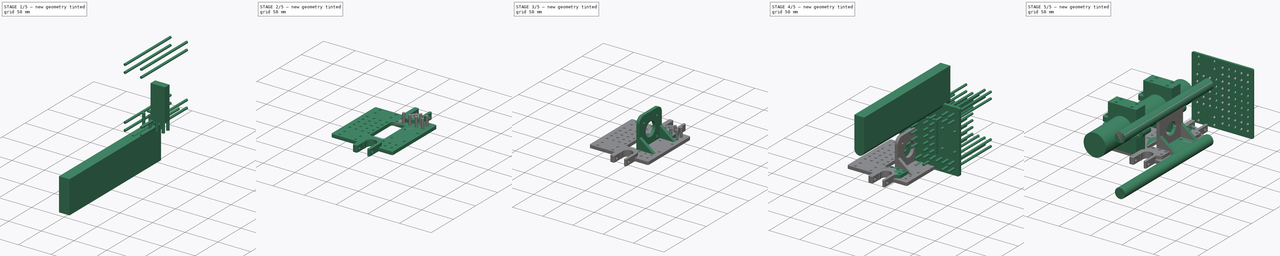
[diagram: build sequence overview — one tinted view per stage of 5, left to right]
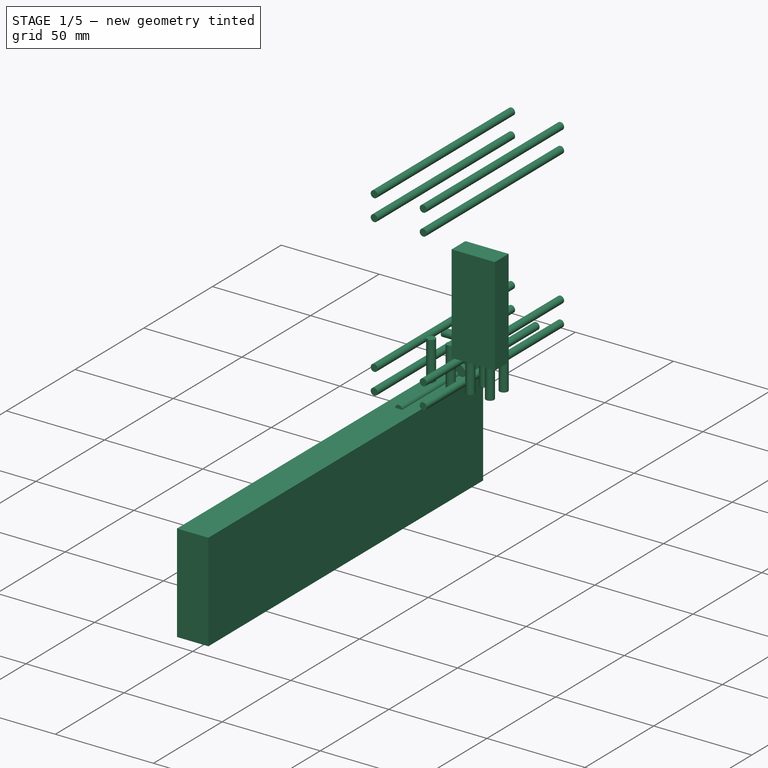
[diagram: stage 1 of 5 — iso view after this stage's code; geometry added in this stage tinted green]
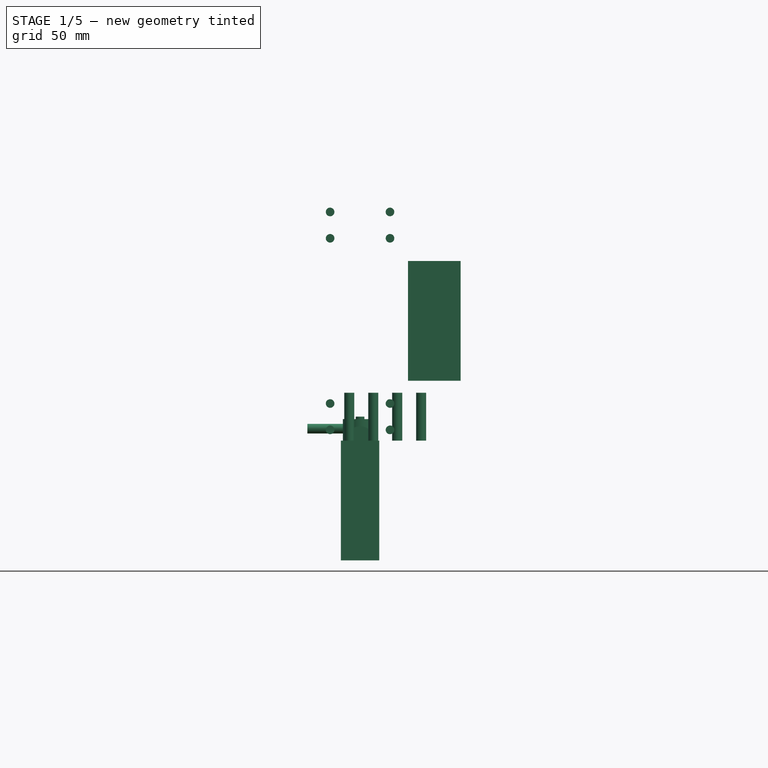
[diagram: stage 1 of 5 — front view after this stage's code; geometry added in this stage tinted green]
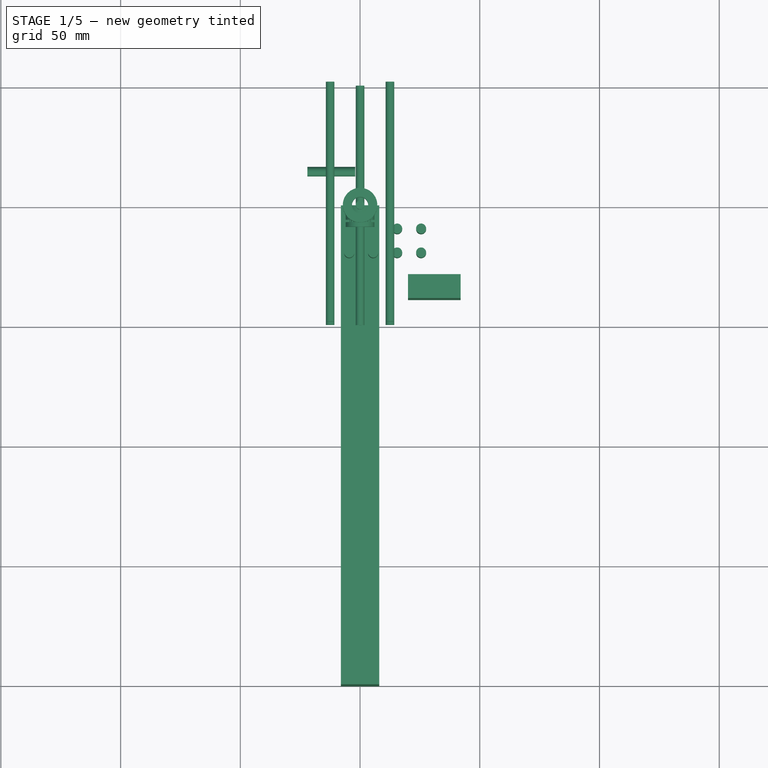
[diagram: stage 1 of 5 — top view after this stage's code; geometry added in this stage tinted green]
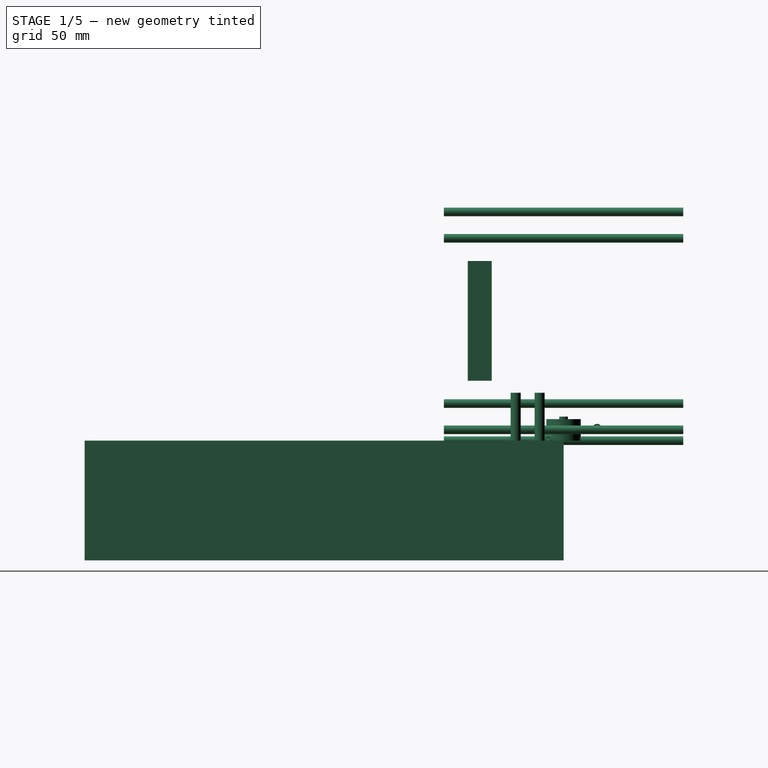
[diagram: stage 1 of 5 — right view after this stage's code; geometry added in this stage tinted green]
FCSTD DOCUMENT  (FreeCAD 0.19R)
Label: belt_connector_V2
License: All rights reserved
LicenseURL: http://en.wikipedia.org/wiki/All_rights_reserved
objects: Part::Cylinder×35, Part::FeaturePython×18, Part::Cut×17, Part::MultiFuse×13, Part::Box×11, Part::Compound×9, App::Part×8, Part::Fillet×7, Part::Feature×6, Sketcher::SketchObject×6, Part::Mirroring×5, Part::Extrusion×4, PartDesign::Pad×2, PartDesign::Body×2, Spreadsheet::Sheet×1
note: 120 computed .brp shape members not serialized (recipe doc carries the construction recipe); baked Part::Feature solids carry a one-line shape summary decoded from their .brp

FEATURE [Part::Cylinder] Cylinder011021  label="bolt hole003"
  Angle = 360
  AttacherType = Attacher::AttachEngine3D
  Height = 100
  Placement = pos=(0,0,-50) rot=(0,0,1;0rad)
  Radius = 1.8
  expr: .Placement.Base.z = -Height / 2
  expr: Radius = <<p>>.bolt_hole_r
FEATURE [Part::Box] Box008  label="belt hole002"
  AttacherType = Attacher::AttachEngine3D
  Height = 50
  Length = 22
  Placement = pos=(20,-40,25) rot=(0,0,1;0rad)
  Width = 10
  expr: .Placement.Base.z = (<<p>>.plate_length - Height) / 2
FEATURE [Part::Box] Box009  label="shaft extension cube002"
  AttacherType = Attacher::AttachEngine3D
  Height = 50
  Length = 16
  Placement = pos=(-8,-200,-50) rot=(0,0,1;0rad)
  Width = 200
  expr: .Placement.Base.z = -Height
  expr: .Placement.Base.x = -Length / 2
  expr: Length = <<p>>.shaft_16mm_r * 2
  expr: .Placement.Base.y = -Width
  expr: Width = <<shaft 16mm003>>.Height
FEATURE [Part::Cylinder] Cylinder011025  label="general bolt hole002"
  Angle = 360
  AttacherType = Attacher::AttachEngine3D
  Height = 100
  Placement = pos=(0,50,0) rot=(1,0,0;1.5708rad)
  Radius = 1.8
  expr: .Placement.Base.y = Height / 2
  expr: Radius = <<p>>.bolt_hole_r
FEATURE [Part::Cylinder] Cylinder011026  label="stepper mount hole002"
  Angle = 360
  AttacherType = Attacher::AttachEngine3D
  Height = 10
  Radius = 1.8
  expr: Radius = <<p>>.bolt_hole_r
FEATURE [Part::FeaturePython] Array016  label="bolt hole array002"  # Draft array (typed FeaturePython)
  Angle = 360
  ArrayType = 0
  Axis = (0,0,1)
  Base = -> Cylinder011021
  Center = (0,0,0)
  Count = 4
  ExpandArray = false
  Fuse = false
  IntervalAxis = (0,0,0)
  IntervalX = (25,0,0)
  IntervalY = (0,11,0)
  IntervalZ = (0,0,100)
  NumberCircles = 3
  NumberPolar = 5
  NumberX = 2
  NumberY = 2
  NumberZ = 1
  Placement = pos=(-12.5,0,4.5) rot=(1,0,0;1.5708rad)
  PlacementList = 4 placements: [(0,0,-50),(0,11,-50),(25,0,-50),(25,11,-50)]
  RadialDistance = 50
  ScaleList = (4) [(1,1,1),(1,1,1),(1,1,1),(1,1,1)]
  Symmetry = 1
  TangentialDistance = 25
  expr: .Placement.Base.z = (<<p>>.attachment_size - .IntervalY.y) / 2
  expr: .IntervalX.x = <<p>>.insert_hole_interval_x
  expr: .IntervalY.y = <<p>>.insert_hole_interval_y
  expr: .Placement.Base.x = -.IntervalX.x / 2
FEATURE [Part::FeaturePython] Array015  label="bolt hole array pair002"  # Draft array (typed FeaturePython)
  Angle = 360
  ArrayType = 0
  Axis = (0,0,1)
  Base = -> Array016
  Center = (0,0,0)
  Count = 2
  ExpandArray = false
  Fuse = false
  IntervalAxis = (0,0,0)
  IntervalX = (100,0,0)
  IntervalY = (0,100,0)
  IntervalZ = (0,0,80)
  NumberCircles = 3
  NumberPolar = 5
  NumberX = 1
  NumberY = 1
  NumberZ = 2
  PlacementList = 2 placements: [(-12.5,0,4.5),(-12.5,0,84.5)]
  RadialDistance = 50
  ScaleList = (2) [(1,1,1),(1,1,1)]
  Symmetry = 1
  TangentialDistance = 25
  expr: .IntervalZ.z = <<p>>.attachment_dist
FEATURE [Part::Cylinder] Cylinder011027  label="insert hole001"
  Angle = 360
  AttacherType = Attacher::AttachEngine3D
  Height = 20
  Placement = pos=(-22,14,5) rot=(0,1,0;1.5708rad)
  Radius = 2
  expr: .Placement.Base.z = <<p>>.shaft_attachment_size / 2
FEATURE [Part::Cylinder] Cylinder011028  label="shaft 16mm003"
  Angle = 360
  AttacherType = Attacher::AttachEngine3D
  Height = 200
  Placement = pos=(0,0,0) rot=(1,0,0;1.5708rad)
  Radius = 8
  expr: Radius = <<p>>.shaft_16mm_r
FEATURE [Part::Cylinder] Cylinder011029  label="general insert hole"
  Angle = 360
  AttacherType = Attacher::AttachEngine3D
  Height = 20
  Radius = 2.1
  expr: Radius = <<p>>.insert_hole_r
FEATURE [Part::FeaturePython] Array017  label="general insert hole array"  # Draft array (typed FeaturePython)
  Angle = 360
  ArrayType = 0
  Axis = (0,0,1)
  Base = -> Cylinder011029
  Center = (0,0,0)
  Count = 8
  ExpandArray = false
  Fuse = false
  IntervalAxis = (0,0,0)
  IntervalX = (10,0,0)
  IntervalY = (0,10,0)
  IntervalZ = (0,0,10)
  NumberCircles = 3
  NumberPolar = 5
  NumberX = 4
  NumberY = 2
  NumberZ = 1
  Placement = pos=(-4.5,-20,0) rot=(1,0,0;0rad)
  PlacementList = 8 placements: [(0,0,0),(0,10,0),(10,0,0),(10,10,0),(20,0,0),(20,10,0),(30,0,0),(30,10,0)]
  RadialDistance = 50
  ScaleList = (8) [(1,1,1),(1,1,1),(1,1,1),(1,1,1),(1,1,1),(1,1,1),(1,1,1),(1,1,1)]
  Symmetry = 1
  TangentialDistance = 25
FEATURE [Part::Box] Box010  label="Cube"
  AttacherType = Attacher::AttachEngine3D
  Height = 20
  Length = 20
  Placement = pos=(-9,-14,0) rot=(0,0,1;0rad)
  Width = 10
FEATURE [Part::Cut] Cut023015009020  label="general insert hole array cut"
  Base = -> Array017
  Tool = -> Box010
FEATURE [Part::FeaturePython] Tube  label="6-15mm"  # WARN: FeaturePython — macro-defined, semantics opaque (R4)
  AttacherType = Attacher::AttachEngine3D
  Height = 9
  InnerRadius = 3.4
  OuterRadius = 7.2
FEATURE [App::Part] Part005  label="5mm washer"
  Group = -> [Tube]
  Origin = -> Origin007
FEATURE [Part::Cylinder] Cylinder011030  label="belt attach bolt hole"
  Angle = 360
  AttacherType = Attacher::AttachEngine3D
  Height = 20
  Placement = pos=(0,0,0) rot=(1,0,0;1.5708rad)
  Radius = 1.8
  expr: Radius = <<p>>.bolt_hole_r
FEATURE [Part::Cylinder] Cylinder011031  label="belt plate disk001"
  Angle = 360
  AttacherType = Attacher::AttachEngine3D
  Height = 6
  Placement = pos=(0,0,0) rot=(1,0,0;1.5708rad)
  Radius = 6
FEATURE [Part::Cut] Cut023015009021  label="belt horizontal attach washer cut"
  Base = -> Cylinder011031
  Tool = -> Cylinder011030
FEATURE [App::Part] Part006  label="horizontal belt attach washer part"
  Group = -> [Cut023015009021]
  Origin = -> Origin008
  Placement = pos=(0,-2,0) rot=(0,0,1;0rad)
FEATURE [Part::Cylinder] Cylinder011032  label="belt smaller cylinder001"
  Angle = 360
  AttacherType = Attacher::AttachEngine3D
  Height = 7
  Placement = pos=(0,0,0) rot=(1,0,0;1.5708rad)
  Radius = 4
FEATURE [Part::Cylinder] Cylinder011033  label="belt disk001"
  Angle = 360
  AttacherType = Attacher::AttachEngine3D
  Height = 2
  Placement = pos=(0,-7,0) rot=(1,0,0;1.5708rad)
  Radius = 6
  expr: .Placement.Base.y = -<<belt smaller cylinder001>>.Height
FEATURE [Part::Cylinder] Cylinder011034  label="belt attach bolt hole001"
  Angle = 360
  AttacherType = Attacher::AttachEngine3D
  Height = 20
  Placement = pos=(0,0,0) rot=(1,0,0;1.5708rad)
  Radius = 1.8
  expr: Radius = <<p>>.bolt_hole_r
FEATURE [Part::Cylinder] Cylinder011035  label="belt pin001"
  Angle = 360
  AttacherType = Attacher::AttachEngine3D
  Height = 7
  Placement = pos=(4,0,0) rot=(1,0,0;1.5708rad)
  Radius = 0.5
  expr: .Placement.Base.x = <<belt smaller cylinder001>>.Radius
FEATURE [Part::FeaturePython] Array018  label="belt pin array001"  # Draft array (typed FeaturePython)
  Angle = 360
  ArrayType = 1
  Axis = (0,1,0)
  Base = -> Cylinder011035
  Center = (0,0,0)
  Count = 15
  ExpandArray = false
  Fuse = false
  IntervalAxis = (0,0,0)
  IntervalX = (50,0,0)
  IntervalY = (0,50,0)
  IntervalZ = (0,0,50)
  NumberCircles = 3
  NumberPolar = 15
  NumberX = 2
  NumberY = 2
  NumberZ = 1
  PlacementList = 15 placements: [(4,0,0),(3.65418,0,-1.62695),(2.67652,0,-2.97258),(1.23607,0,-3.80423),(-0.418114,0,-3.97809),(-2,0,-3.4641),(-3.23607,0,-2.35114),(-3.91259,0,-0.831647),(-3.91259,0,0.831647),(-3.23607,0,2.35114),(-2,0,3.4641),(-0.418114,0,3.97809),(1.23607,0,3.80423),(2.67652,0,2.97258),(3.65418,0,1.62695)]
  RadialDistance = 50
  ScaleList = (15) [(1,1,1),(1,1,1),(1,1,1),(1,1,1),(1,1,1),(1,1,1),(1,1,1),(1,1,1),(1,1,1),(1,1,1),(1,1,1),(1,1,1),(1,1,1),(1,1,1),(1,1,1)]
  Symmetry = 1
  TangentialDistance = 25
FEATURE [Part::MultiFuse] Fusion012  label="belt attach fusion001"
  Shapes = -> [Cylinder011032,Cylinder011033,Array018]
FEATURE [Part::Cut] Cut023015009022  label="horizontal belt attach cut"
  Base = -> Fusion012
  Tool = -> Cylinder011034
FEATURE [App::Part] Part007  label="horizontal belt attach"
  Group = -> [Cut023015009022]
  Origin = -> Origin009
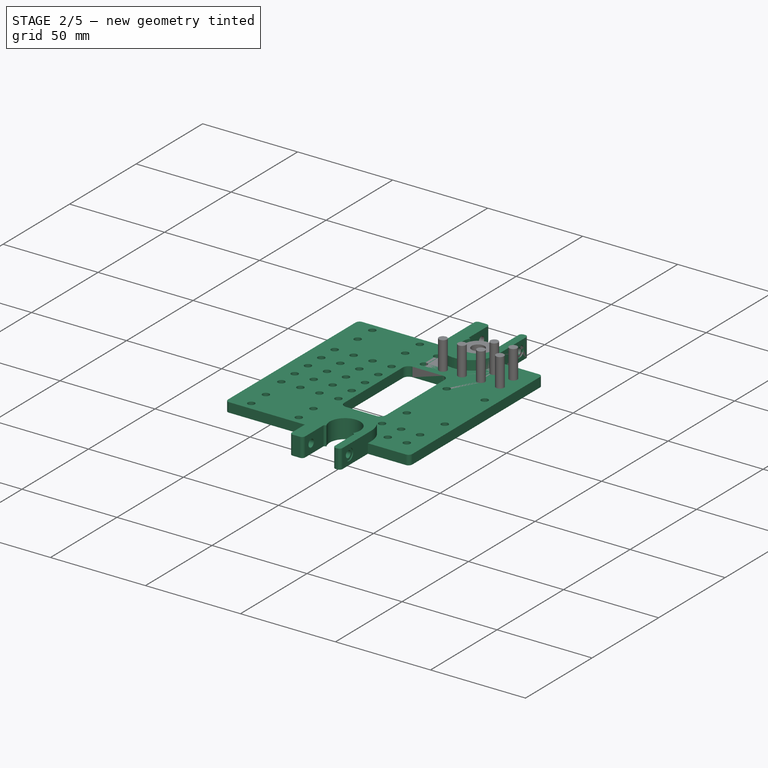
[diagram: stage 2 of 5 — iso view after this stage's code; geometry added in this stage tinted green]
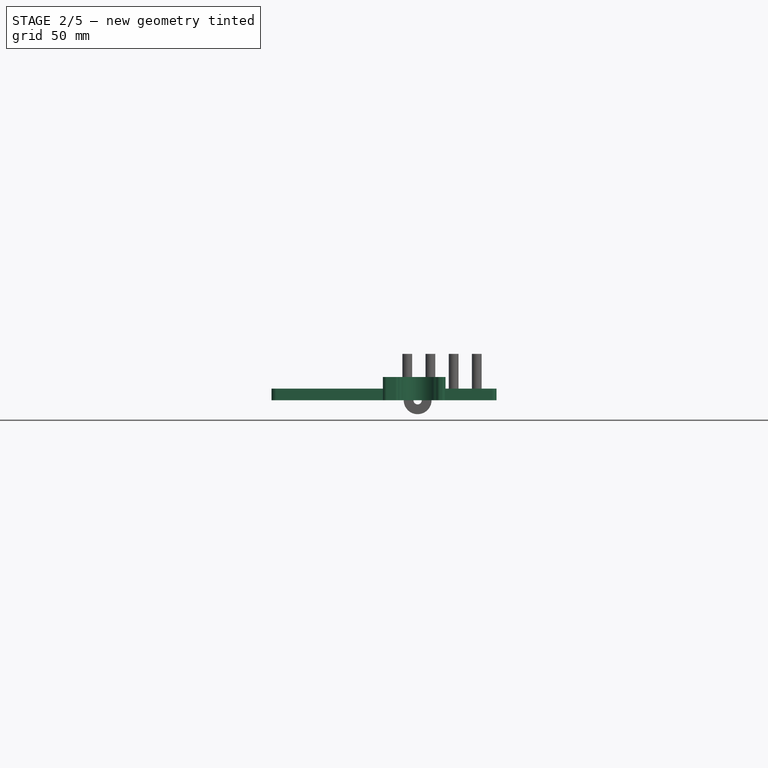
[diagram: stage 2 of 5 — front view after this stage's code; geometry added in this stage tinted green]
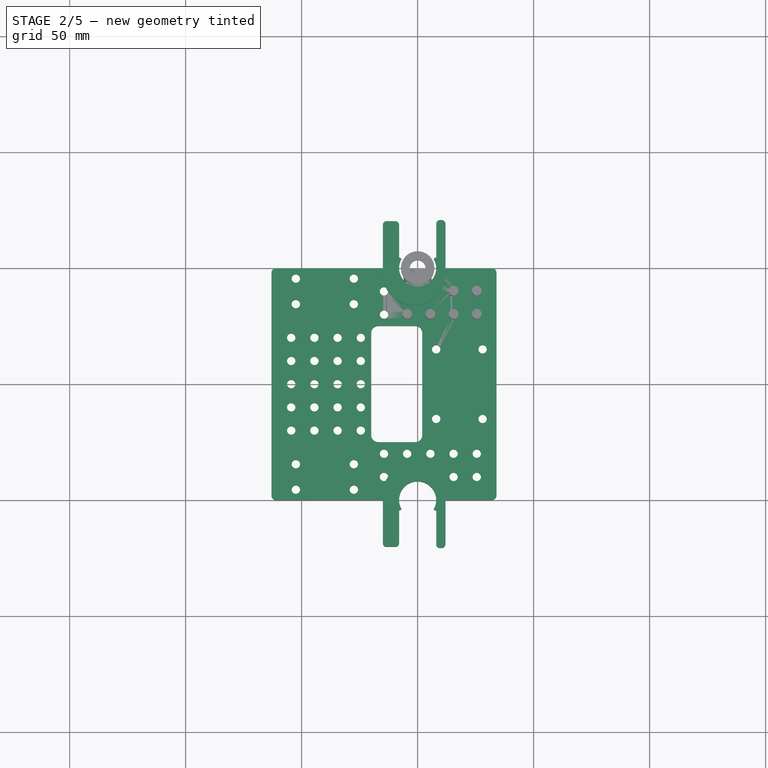
[diagram: stage 2 of 5 — top view after this stage's code; geometry added in this stage tinted green]
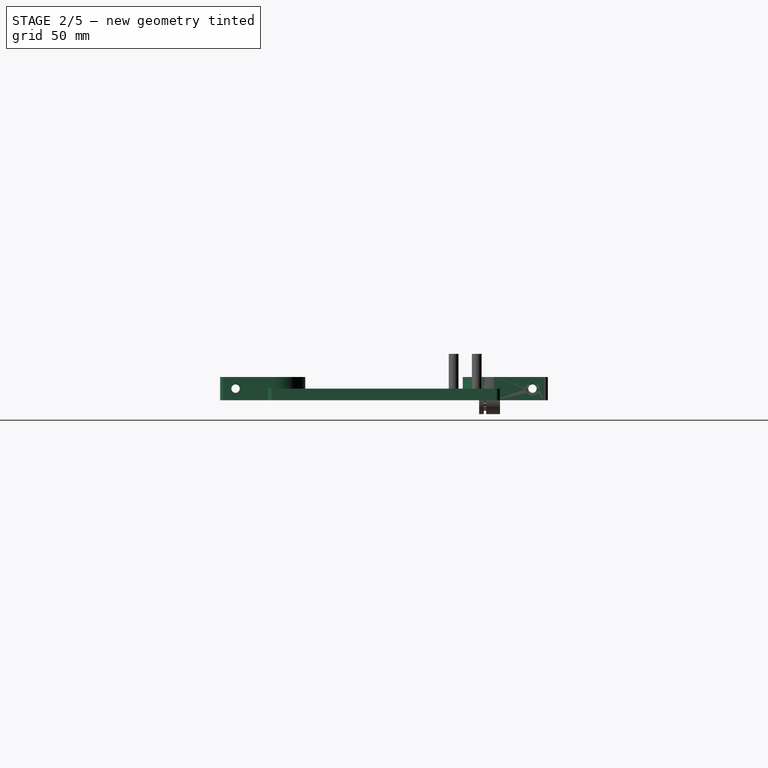
[diagram: stage 2 of 5 — right view after this stage's code; geometry added in this stage tinted green]
FEATURE [Part::Cylinder] Cylinder011020  label="bolt head hole001"
  Angle = 360
  AttacherType = Attacher::AttachEngine3D
  Height = 20
  Placement = pos=(11.5,14,5) rot=(0,1,0;1.5708rad)
  Radius = 3
  expr: Radius = <<p>>.bolt_head_r
  expr: .Placement.Base.z = <<p>>.shaft_attachment_size / 2
FEATURE [Sketcher::SketchObject] Sketch004
  FullyConstrained = false
  MapMode = 5
  Support = -> [XY_Plane006]
  expr: Constraints[7] = <<p>>.shaft_16mm_r
  sketch-geometry (12):
    g0: LineSegment StartX=12 StartY=-2.57721 StartZ=0 EndX=12 EndY=19.0179 EndZ=0
    g1: LineSegment StartX=10.3722 StartY=20.6457 StartZ=0 EndX=9.62781 EndY=20.6457 EndZ=0
    g2: LineSegment StartX=8 StartY=19.0179 StartZ=0 EndX=8 EndY=-3.6e-15 EndZ=0
    g3: LineSegment StartX=-8 StartY=-2.6e-15 StartZ=0 EndX=-8 EndY=18.5447 EndZ=0
    g4: LineSegment StartX=-9.62781 StartY=20.1725 StartZ=0 EndX=-13.3722 EndY=20.1725 EndZ=0
    g5: LineSegment StartX=-15 StartY=18.5447 StartZ=0 EndX=-15 EndY=-2.57721 EndZ=0
    g6: ArcOfCircle CenterX=0 CenterY=0 CenterZ=0 NormalX=0 NormalY=0 NormalZ=1 AngleXU=0 Radius=8 StartAngle=3.14159 EndAngle=6.28319
    g7: ArcOfCircle CenterX=10.3722 CenterY=19.0179 CenterZ=0 NormalX=0 NormalY=0 NormalZ=1 AngleXU=0 Radius=1.62781 StartAngle=0 EndAngle=1.5708
    g8: ArcOfCircle CenterX=9.62781 CenterY=19.0179 CenterZ=0 NormalX=0 NormalY=0 NormalZ=1 AngleXU=0 Radius=1.62781 StartAngle=1.5708 EndAngle=3.14159
    g9: ArcOfCircle CenterX=-9.62781 CenterY=18.5447 CenterZ=0 NormalX=0 NormalY=0 NormalZ=1 AngleXU=0 Radius=1.62781 StartAngle=1e-16 EndAngle=1.5708
    g10: ArcOfCircle CenterX=-13.3722 CenterY=18.5447 CenterZ=0 NormalX=0 NormalY=0 NormalZ=1 AngleXU=0 Radius=1.62781 StartAngle=1.5708 EndAngle=3.14159
    g11: ArcOfCircle CenterX=-1.5 CenterY=-2.57721 CenterZ=0 NormalX=0 NormalY=0 NormalZ=1 AngleXU=0 Radius=13.5 StartAngle=3.14159 EndAngle=6.28319
  constraints (25):
    c: Vertical(g0)
    c: Vertical(g2)
    c: Horizontal(g4)
    c: Vertical(g5)
    c: Horizontal(g1)
    c: Tangent(g6,g3) = 1.5708
    c: Tangent(g6,g2) = 1.5708
    c: Radius(g6) = 8
    c: Coincident(g-1,g6)
    c: Tangent(g1,g7) = -1.5708
    c: Tangent(g0,g7) = -1.5708
    c: Tangent(g2,g8) = -1.5708
    c: Tangent(g1,g8) = -1.5708
    c: Tangent(g3,g9) = -1.5708
    c: Tangent(g4,g9) = -1.5708
    c: Tangent(g4,g10) = -1.5708
    c: Tangent(g5,g10) = -1.5708
    c: Equal(g10,g9)
    c: Equal(g9,g8)
    c: Equal(g8,g7)
    c: DistanceX(g2,g0) = 4
    c: DistanceX(g5,g3) = 7
    c: Vertical(g3)
    c: Tangent(g11,g0) = -1.5708
    c: Tangent(g11,g5) = -1.5708
FEATURE [Part::Cylinder] Cylinder011022
  Angle = 360
  AttacherType = Attacher::AttachEngine3D
  Height = 10
  Radius = 8
  expr: Radius = <<p>>.shaft_16mm_r
  expr: Height = <<p>>.shaft_attachment_size
FEATURE [Part::Cylinder] Cylinder011023
  Angle = 240
  AttacherType = Attacher::AttachEngine3D
  Height = 10
  Placement = pos=(0,0,0) rot=(0,0,1;2.61799rad)
  Radius = 11
  expr: Height = <<p>>.shaft_attachment_size
  expr: Radius = <<p>>.shaft_16mm_r + 3mm
FEATURE [PartDesign::Pad] Pad001
  Direction = (1,1,1)
  Length = 10
  Length2 = 100
  Profile = -> Sketch004
  Type = 0
  expr: Length = <<p>>.shaft_attachment_size
FEATURE [PartDesign::Body] Body001  label="shaft attachment body001"
  Group = -> [Sketch004,Pad001]
  Origin = -> Origin006
  Tip = -> Pad001
FEATURE [Part::Cut] Cut023015009018
  Base = -> Cylinder011023
  Tool = -> Cylinder011022
FEATURE [Part::MultiFuse] Fusion008  label="shaft attachment fusion001"
  Shapes = -> [Body001,Cut023015009018]
FEATURE [Part::Box] Box007  label="side plate002"
  AttacherType = Attacher::AttachEngine3D
  Height = 100
  Length = 97
  Placement = pos=(-23,-36,0) rot=(0,0,1;0rad)
  Width = 5
  expr: Length = <<p>>.plate_height
  expr: Height = <<p>>.plate_length
  expr: Width = <<p>>.plate_thickness
FEATURE [Part::Fillet] Fillet005  label="side plate fillet002"
  Base = -> Box007
  Edges = 4 edges r=2: [Edge2,Edge4,Edge6,Edge8]
FEATURE [Part::Cylinder] Cylinder011024  label="bolt hole004"
  Angle = 360
  AttacherType = Attacher::AttachEngine3D
  Height = 20
  Placement = pos=(-1,14,5) rot=(0,1,0;1.5708rad)
  Radius = 1.8
  expr: .Placement.Base.z = <<p>>.shaft_attachment_size / 2
  expr: Radius = <<p>>.bolt_hole_r
FEATURE [Sketcher::SketchObject] Sketch005
  FullyConstrained = false
  Placement = pos=(0,0,0) rot=(1,0,0;1.5708rad)
  sketch-geometry (20):
    g0: LineSegment StartX=-22.854 StartY=23.5436 StartZ=0 EndX=19.2636 EndY=23.5436 EndZ=0
    g1: LineSegment StartX=19.2636 StartY=23.5436 StartZ=0 EndX=19.2636 EndY=-0.19514 EndZ=0
    g2: LineSegment StartX=19.2636 StartY=-0.19514 StartZ=0 EndX=-22.854 EndY=-0.19514 EndZ=0
    g3: LineSegment StartX=-22.854 StartY=-0.19514 StartZ=0 EndX=-22.854 EndY=23.5436 EndZ=0
    g4: LineSegment StartX=-21.2207 StartY=102.675 StartZ=0 EndX=19.2504 EndY=102.675 EndZ=0
    g5: LineSegment StartX=19.2504 StartY=102.675 StartZ=0 EndX=19.2504 EndY=75.6273 EndZ=0
    g6: LineSegment StartX=19.2504 StartY=75.6273 StartZ=0 EndX=-21.2207 EndY=75.6273 EndZ=0
    g7: LineSegment StartX=-21.2207 StartY=75.6273 StartZ=0 EndX=-21.2207 EndY=102.675 EndZ=0
    g8: LineSegment StartX=42.3267 StartY=72.4011 StartZ=0 EndX=71.7078 EndY=72.4011 EndZ=0
    g9: LineSegment StartX=71.7078 StartY=72.4011 StartZ=0 EndX=71.7078 EndY=26.2045 EndZ=0
    g10: LineSegment StartX=71.7078 StartY=26.2045 StartZ=0 EndX=42.3267 EndY=26.2045 EndZ=0
    g11: LineSegment StartX=42.3267 StartY=26.2045 StartZ=0 EndX=42.3267 EndY=72.4011 EndZ=0
    g12: LineSegment StartX=29.4247 StartY=102.555 StartZ=0 EndX=49.6596 EndY=102.555 EndZ=0
    g13: LineSegment StartX=49.6596 StartY=102.555 StartZ=0 EndX=49.6596 EndY=84.1741 EndZ=0
    g14: LineSegment StartX=49.6596 StartY=84.1741 StartZ=0 EndX=29.4247 EndY=84.1741 EndZ=0
    g15: LineSegment StartX=29.4247 StartY=84.1741 StartZ=0 EndX=29.4247 EndY=102.555 EndZ=0
    g16: LineSegment StartX=28.5473 StartY=14.772 StartZ=0 EndX=50.5486 EndY=14.772 EndZ=0
    g17: LineSegment StartX=50.5486 StartY=14.772 StartZ=0 EndX=50.5486 EndY=-3.0068 EndZ=0
    g18: LineSegment StartX=50.5486 StartY=-3.0068 StartZ=0 EndX=28.5473 EndY=-3.0068 EndZ=0
    g19: LineSegment StartX=28.5473 StartY=-3.0068 StartZ=0 EndX=28.5473 EndY=14.772 EndZ=0
  constraints (40):
    c: Coincident(g0,g1)
    c: Coincident(g1,g2)
    c: Coincident(g2,g3)
    c: Coincident(g3,g0)
    c: Horizontal(g0)
    c: Horizontal(g2)
    c: Vertical(g1)
    c: Vertical(g3)
    c: Coincident(g4,g5)
    c: Coincident(g5,g6)
    c: Coincident(g6,g7)
    c: Coincident(g7,g4)
    c: Horizontal(g4)
    c: Horizontal(g6)
    c: Vertical(g5)
    c: Vertical(g7)
    c: Coincident(g8,g9)
    c: Coincident(g9,g10)
    c: Coincident(g10,g11)
    c: Coincident(g11,g8)
    c: Horizontal(g8)
    c: Horizontal(g10)
    c: Vertical(g9)
    c: Vertical(g11)
    c: Coincident(g12,g13)
    c: Coincident(g13,g14)
    c: Coincident(g14,g15)
    c: Coincident(g15,g12)
    c: Horizontal(g12)
    c: Horizontal(g14)
    c: Vertical(g13)
    c: Vertical(g15)
    c: Coincident(g16,g17)
    c: Coincident(g17,g18)
    c: Coincident(g18,g19)
    c: Coincident(g19,g16)
    c: Horizontal(g16)
    c: Horizontal(g18)
    c: Vertical(g17)
    c: Vertical(g19)
FEATURE [Part::Extrusion] Extrude003  label="general holes extrude002"
  Base = -> Sketch005
  Dir = (0,-1,2e-16)
  DirMode = 2
  FaceMakerClass = Part::FaceMakerBullseye
  LengthFwd = 100
  LengthRev = 0
  Solid = true
  Symmetric = true
FEATURE [Part::Fillet] Fillet006  label="belt hole fillet002"
  Base = -> Box008
  Edges = 4 edges r=3: [Edge2,Edge4,Edge6,Edge8]
FEATURE [Part::FeaturePython] Array013  label="general bolt hole array002"  # Draft array (typed FeaturePython)
  Angle = 360
  ArrayType = 0
  Axis = (0,0,1)
  Base = -> Cylinder011025
  Center = (0,0,0)
  Count = 81
  ExpandArray = false
  Fuse = false
  IntervalAxis = (0,0,0)
  IntervalX = (10,0,0)
  IntervalY = (0,10,0)
  IntervalZ = (0,0,10)
  NumberCircles = 3
  NumberPolar = 5
  NumberX = 9
  NumberY = 1
  NumberZ = 9
  Placement = pos=(-14.5,0,10) rot=(0,0,1;0rad)
  PlacementList = <same value as first occurrence — deduplicated (x3 in doc)>
  RadialDistance = 50
  ScaleList = (81) [(1,1,1),(1,1,1),(1,1,1),(1,1,1),(1,1,1),(1,1,1),(1,1,1),(1,1,1),(1,1,1),(1,1,1),(1,1,1),(1,1,1),(1,1,1),(1,1,1),(1,1,1),(1,1,1),(1,1,1),(1,1,1),+63 more]
  Symmetry = 1
  TangentialDistance = 25
  expr: .Placement.Base.x = (<<p>>.plate_height - .IntervalX.x * (NumberX - 1)) / 2 + <<side plate002>>.Placement.Base.x
  expr: .Placement.Base.z = (<<p>>.plate_length - .IntervalZ.z * (NumberZ - 1)) / 2 + <<side plate002>>.Placement.Base.z
  expr: NumberX = round(<<p>>.plate_height / .IntervalX.x) - 1
  expr: NumberZ = round(<<p>>.plate_length / .IntervalZ.z) - 1
FEATURE [Part::Cut] Cut023015009015  label="general bolt hole set002"
  Base = -> Array013
  Tool = -> Extrude003
FEATURE [Part::FeaturePython] Array014  label="stepper mount hole array002"  # Draft array (typed FeaturePython)
  Angle = 360
  ArrayType = 0
  Axis = (0,0,1)
  Base = -> Cylinder011026
  Center = (0,0,0)
  Count = 4
  ExpandArray = false
  Fuse = false
  IntervalAxis = (0,0,0)
  IntervalX = (30,0,0)
  IntervalY = (0,20,0)
  IntervalZ = (0,0,100)
  NumberCircles = 3
  NumberPolar = 5
  NumberX = 2
  NumberY = 2
  NumberZ = 1
  Placement = pos=(48,-31,65) rot=(0.57735,0.57735,-0.57735;2.0944rad)
  PlacementList = 4 placements: [(0,0,0),(0,20,0),(30,0,0),(30,20,0)]
  RadialDistance = 50
  ScaleList = (4) [(1,1,1),(1,1,1),(1,1,1),(1,1,1)]
  Symmetry = 1
  TangentialDistance = 25
FEATURE [Part::MultiFuse] Fusion009  label="shaft attachment holde fusion001"
  Shapes = -> [Cylinder011027,Cylinder011024,Cylinder011020]
FEATURE [Part::Cut] Cut023015009017  label="shaft attachment  cut001"
  Base = -> Fusion008
  Tool = -> Fusion009
FEATURE [Part::Mirroring] Part__Mirroring003  label="shaft attachment  cut (Mirror #2)001"
  Base = (0,-50,0)
  Normal = (0,1,0)
  Source = -> Cut023015009017
FEATURE [Part::Compound] Compound009  label="shaft attachment pair compount001"
  Links = -> [Cut023015009017,Part__Mirroring003]
FEATURE [Part::MultiFuse] Fusion010  label="shaft 16mm hole002"
  Placement = pos=(40,-19,0) rot=(0,0,1;0rad)
  Shapes = -> [Cylinder011028,Box009]
FEATURE [Part::Mirroring] Part__Mirroring004  label="shaft 16mm hole (Mirror #1)002"
  Base = (0,0,50)
  Normal = (0,0,1)
  Source = -> Fusion010
FEATURE [Part::MultiFuse] Fusion011  label="hole fusion002"
  Shapes = -> [Cut023015009015,Array015,Array014,Fillet006,Part__Mirroring004,Fusion010]
FEATURE [Part::Cut] Cut023015009019  label="side plate cut002"
  Base = -> Fillet005
  Tool = -> Fusion011
FEATURE [Part::Compound] Compound010  label="shaft side compound001"
  Links = -> [Cut023015009019]
  Placement = pos=(-40,0,36) rot=(1,0,0;1.5708rad)
FEATURE [Part::Compound] Compound011  label="whole shaft plate compound no motor mount"
  Links = -> [Compound009,Compound010]
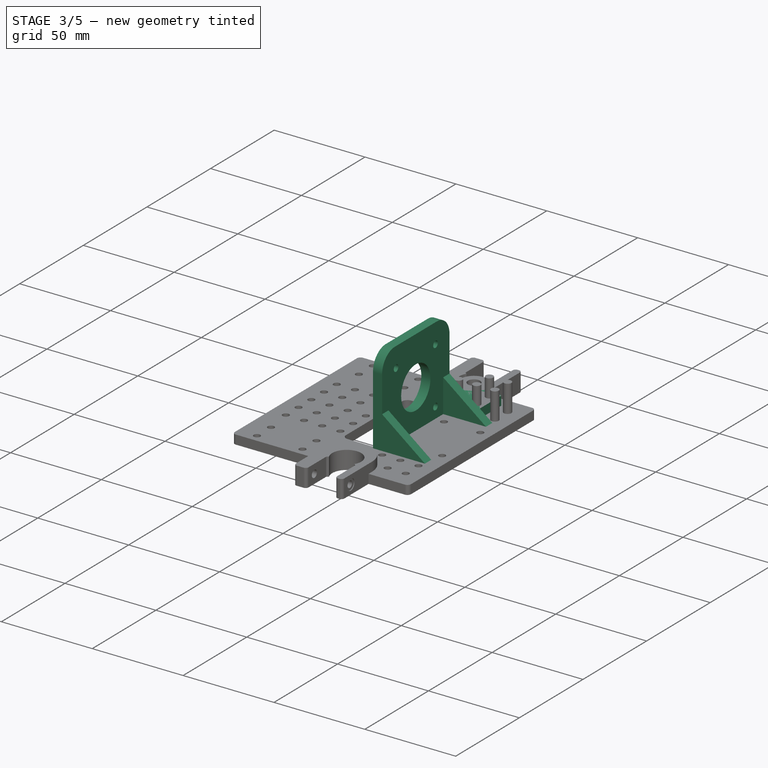
[diagram: stage 3 of 5 — iso view after this stage's code; geometry added in this stage tinted green]
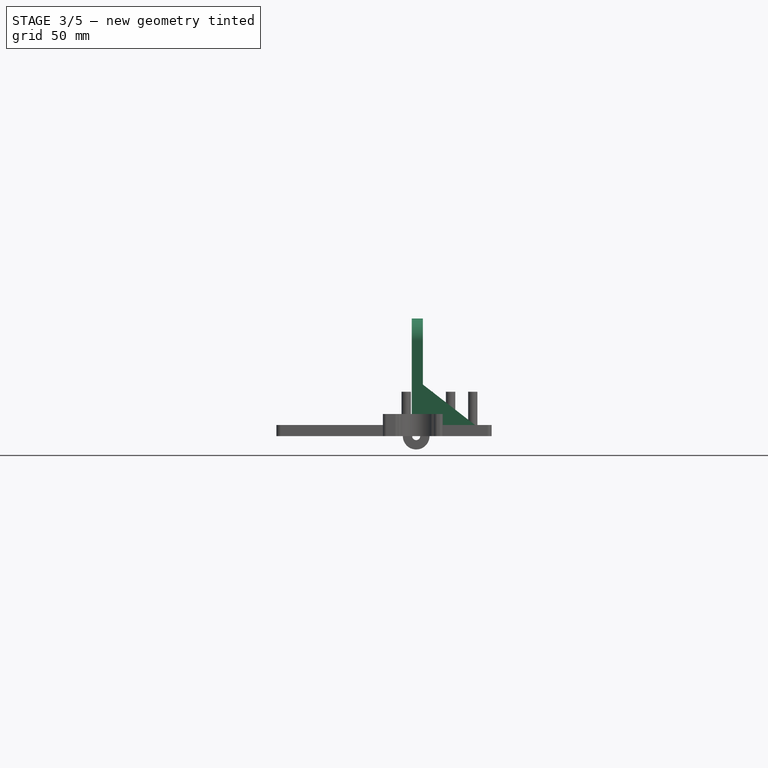
[diagram: stage 3 of 5 — front view after this stage's code; geometry added in this stage tinted green]
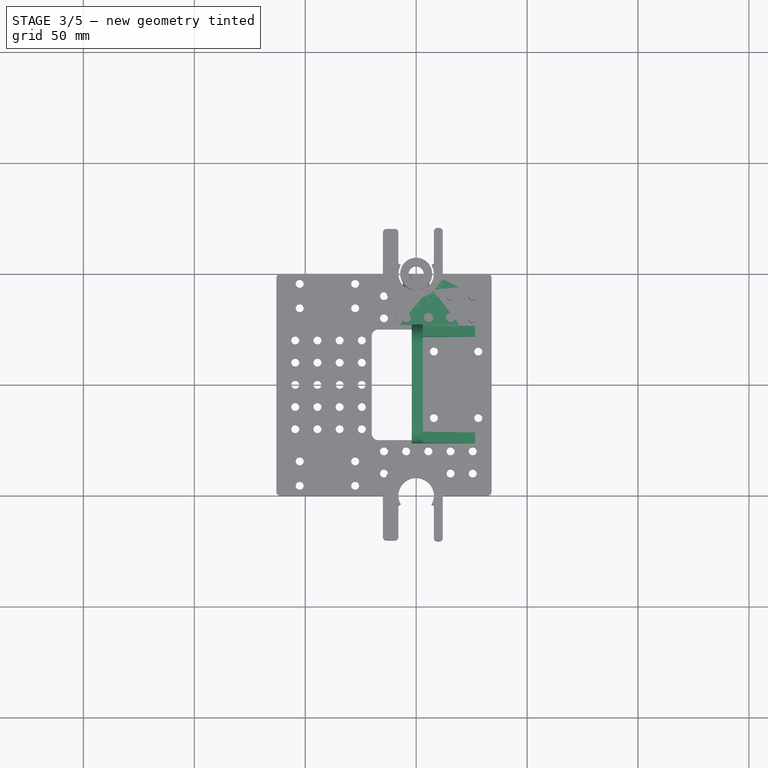
[diagram: stage 3 of 5 — top view after this stage's code; geometry added in this stage tinted green]
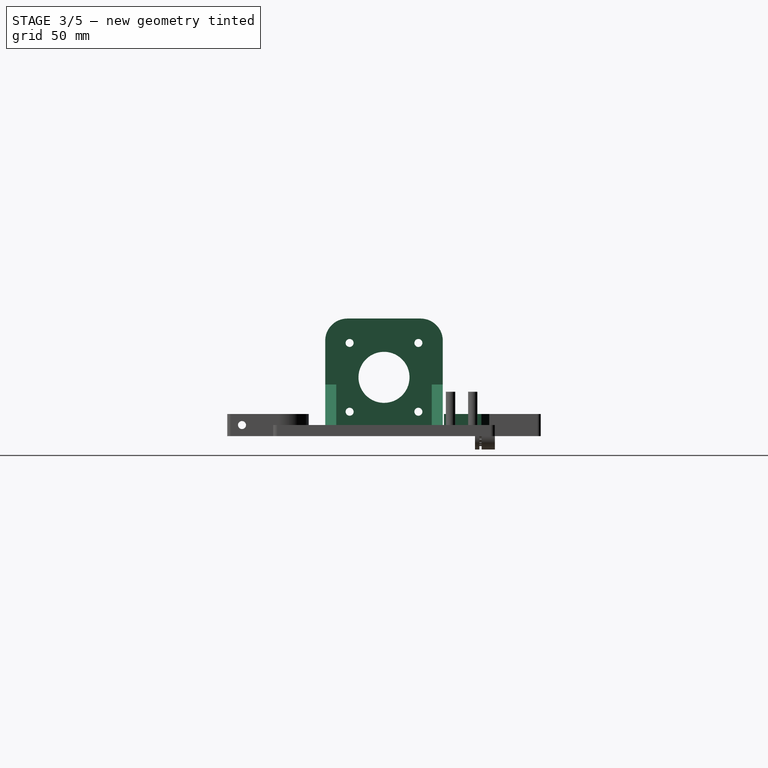
[diagram: stage 3 of 5 — right view after this stage's code; geometry added in this stage tinted green]
FEATURE [Sketcher::SketchObject] Sketch002
  FullyConstrained = false
  MapMode = 5
  Support = -> [XY_Plane005]
  expr: Constraints[7] = <<p>>.shaft_16mm_r
  sketch-geometry (15):
    g0: LineSegment StartX=12 StartY=-2.57721 StartZ=0 EndX=12 EndY=19.0179 EndZ=0
    g1: LineSegment StartX=10.3722 StartY=20.6457 StartZ=0 EndX=9.62781 EndY=20.6457 EndZ=0
    g2: LineSegment StartX=8 StartY=19.0179 StartZ=0 EndX=8 EndY=-3.6e-15 EndZ=0
    g3: LineSegment StartX=-8 StartY=-2.6e-15 StartZ=0 EndX=-8 EndY=18.5447 EndZ=0
    g4: LineSegment StartX=-9.62781 StartY=20.1725 StartZ=0 EndX=-13.3722 EndY=20.1725 EndZ=0
    g5: LineSegment StartX=-15 StartY=18.5447 StartZ=0 EndX=-15 EndY=-2.57721 EndZ=0
    g6: ArcOfCircle CenterX=0 CenterY=0 CenterZ=0 NormalX=0 NormalY=0 NormalZ=1 AngleXU=0 Radius=8 StartAngle=3.14159 EndAngle=6.28319
    g7: ArcOfCircle CenterX=10.3722 CenterY=19.0179 CenterZ=0 NormalX=0 NormalY=0 NormalZ=1 AngleXU=0 Radius=1.62781 StartAngle=0 EndAngle=1.5708
    g8: ArcOfCircle CenterX=9.62781 CenterY=19.0179 CenterZ=0 NormalX=0 NormalY=0 NormalZ=1 AngleXU=0 Radius=1.62781 StartAngle=1.5708 EndAngle=3.14159
    g9: ArcOfCircle CenterX=-9.62781 CenterY=18.5447 CenterZ=0 NormalX=0 NormalY=0 NormalZ=1 AngleXU=0 Radius=1.62781 StartAngle=1e-16 EndAngle=1.5708
    g10: ArcOfCircle CenterX=-13.3722 CenterY=18.5447 CenterZ=0 NormalX=0 NormalY=0 NormalZ=1 AngleXU=0 Radius=1.62781 StartAngle=1.5708 EndAngle=3.14159
    g11: LineSegment StartX=-15 StartY=-2.57721 StartZ=0 EndX=-7.27493 EndY=-22.958 EndZ=0
    g12: LineSegment StartX=-7.27493 StartY=-22.958 StartZ=0 EndX=19.2869 EndY=-22.958 EndZ=0
    g13: LineSegment StartX=19.2869 StartY=-22.958 StartZ=0 EndX=19.2869 EndY=-6.08228 EndZ=0
    g14: LineSegment StartX=19.2869 StartY=-6.08228 StartZ=0 EndX=12 EndY=-2.57721 EndZ=0
  constraints (30):
    c: Vertical(g0)
    c: Vertical(g2)
    c: Horizontal(g4)
    c: Vertical(g5)
    c: Horizontal(g1)
    c: Tangent(g6,g3) = 1.5708
    c: Tangent(g6,g2) = 1.5708
    c: Radius(g6) = 8
    c: Coincident(g-1,g6)
    c: Tangent(g1,g7) = -1.5708
    c: Tangent(g0,g7) = -1.5708
    c: Tangent(g2,g8) = -1.5708
    c: Tangent(g1,g8) = -1.5708
    c: Tangent(g3,g9) = -1.5708
    c: Tangent(g4,g9) = -1.5708
    c: Tangent(g4,g10) = -1.5708
    c: Tangent(g5,g10) = -1.5708
    c: Equal(g10,g9)
    c: Equal(g9,g8)
    c: Equal(g8,g7)
    c: DistanceX(g2,g0) = 4
    c: DistanceX(g5,g3) = 7
    c: Vertical(g3)
    c: Coincident(g11,g5)
    c: Coincident(g12,g11)
    c: Horizontal(g12)
    c: Coincident(g13,g12)
    c: Coincident(g14,g13)
    c: Coincident(g14,g0)
    c: Vertical(g13)
FEATURE [PartDesign::Pad] Pad
  Direction = (1,1,1)
  Length = 10
  Length2 = 100
  Profile = -> Sketch002
  Type = 0
  expr: Length = <<p>>.shaft_attachment_size
FEATURE [Part::Cylinder] Cylinder011014  label="Cylinder"
  Angle = 360
  AttacherType = Attacher::AttachEngine3D
  Height = 10
  Radius = 8
  expr: Height = <<p>>.shaft_attachment_size
  expr: Radius = <<p>>.shaft_16mm_r
FEATURE [Part::Cylinder] Cylinder011015
  Angle = 240
  AttacherType = Attacher::AttachEngine3D
  Height = 10
  Placement = pos=(0,0,0) rot=(0,0,1;2.61799rad)
  Radius = 11
  expr: Radius = <<p>>.shaft_16mm_r + 3mm
  expr: Height = <<p>>.shaft_attachment_size
FEATURE [Part::Cut] Cut023015009010
  Base = -> Cylinder011015
  Tool = -> Cylinder011014
FEATURE [Part::MultiFuse] Fusion005  label="shaft attachment fusion"
  Shapes = -> [Body,Cut023015009010]
FEATURE [Part::Feature] Cut023015009011  label="stepper mount001"
  Placement = pos=(38,-9.5,50) rot=(0,1,0;1.5708rad)
  shape: bbox 35 x 53 x 53 mm, 32 faces (baked)
  expr: .Placement.Base.z = <<p>>.attachment_dist / 2 + <<p>>.attachment_size / 2
FEATURE [Part::Box] Box004  label="shaft extension cube001"
  AttacherType = Attacher::AttachEngine3D
  Height = 50
  Length = 16
  Placement = pos=(-8,-200,-50) rot=(0,0,1;0rad)
  Width = 200
  expr: Width = <<shaft 16mm002>>.Height
  expr: .Placement.Base.y = -Width
  expr: Length = <<p>>.shaft_16mm_r * 2
  expr: .Placement.Base.x = -Length / 2
  expr: .Placement.Base.z = -Height
FEATURE [Part::Cylinder] Cylinder011016  label="bolt hole002"
  Angle = 360
  AttacherType = Attacher::AttachEngine3D
  Height = 100
  Placement = pos=(0,0,-50) rot=(0,0,1;0rad)
  Radius = 1.8
  expr: Radius = <<p>>.bolt_hole_r
  expr: .Placement.Base.z = -Height / 2
FEATURE [Part::FeaturePython] Array008  label="bolt hole array001"  # Draft array (typed FeaturePython)
  Angle = 360
  ArrayType = 0
  Axis = (0,0,1)
  Base = -> Cylinder011016
  Center = (0,0,0)
  Count = 4
  ExpandArray = false
  Fuse = false
  IntervalAxis = (0,0,0)
  IntervalX = (25,0,0)
  IntervalY = (0,11,0)
  IntervalZ = (0,0,100)
  NumberCircles = 3
  NumberPolar = 5
  NumberX = 2
  NumberY = 2
  NumberZ = 1
  Placement = pos=(-12.5,0,4.5) rot=(1,0,0;1.5708rad)
  PlacementList = 4 placements: [(0,0,-50),(0,11,-50),(25,0,-50),(25,11,-50)]
  RadialDistance = 50
  ScaleList = (4) [(1,1,1),(1,1,1),(1,1,1),(1,1,1)]
  Symmetry = 1
  TangentialDistance = 25
  expr: .Placement.Base.x = -.IntervalX.x / 2
  expr: .IntervalY.y = <<p>>.insert_hole_interval_y
  expr: .IntervalX.x = <<p>>.insert_hole_interval_x
  expr: .Placement.Base.z = (<<p>>.attachment_size - .IntervalY.y) / 2
FEATURE [Part::FeaturePython] Array009  label="bolt hole array pair001"  # Draft array (typed FeaturePython)
  Angle = 360
  ArrayType = 0
  Axis = (0,0,1)
  Base = -> Array008
  Center = (0,0,0)
  Count = 2
  ExpandArray = false
  Fuse = false
  IntervalAxis = (0,0,0)
  IntervalX = (100,0,0)
  IntervalY = (0,100,0)
  IntervalZ = (0,0,80)
  NumberCircles = 3
  NumberPolar = 5
  NumberX = 1
  NumberY = 1
  NumberZ = 2
  PlacementList = 2 placements: [(-12.5,0,4.5),(-12.5,0,84.5)]
  RadialDistance = 50
  ScaleList = (2) [(1,1,1),(1,1,1)]
  Symmetry = 1
  TangentialDistance = 25
  expr: .IntervalZ.z = <<p>>.attachment_dist
FEATURE [Part::Box] Box005  label="belt hole001"
  AttacherType = Attacher::AttachEngine3D
  Height = 50
  Length = 22
  Placement = pos=(20,-40,25) rot=(0,0,1;0rad)
  Width = 10
  expr: .Placement.Base.z = (<<p>>.plate_length - Height) / 2
FEATURE [Part::Cylinder] Cylinder011017  label="shaft 16mm002"
  Angle = 360
  AttacherType = Attacher::AttachEngine3D
  Height = 200
  Placement = pos=(0,0,0) rot=(1,0,0;1.5708rad)
  Radius = 8
  expr: Radius = <<p>>.shaft_16mm_r
FEATURE [Part::MultiFuse] Fusion006  label="shaft 16mm hole001"
  Placement = pos=(40,-19,0) rot=(0,0,1;0rad)
  Shapes = -> [Cylinder011017,Box004]
FEATURE [Part::Fillet] Fillet003  label="belt hole fillet001"
  Base = -> Box005
  Edges = 4 edges r=3: [Edge2,Edge4,Edge6,Edge8]
FEATURE [Part::Cylinder] Cylinder011018  label="general bolt hole001"
  Angle = 360
  AttacherType = Attacher::AttachEngine3D
  Height = 100
  Placement = pos=(0,50,0) rot=(1,0,0;1.5708rad)
  Radius = 1.8
  expr: Radius = <<p>>.bolt_hole_r
  expr: .Placement.Base.y = Height / 2
FEATURE [Part::Cylinder] Cylinder011019  label="stepper mount hole001"
  Angle = 360
  AttacherType = Attacher::AttachEngine3D
  Height = 10
  Radius = 1.8
  expr: Radius = <<p>>.bolt_hole_r
FEATURE [Part::Box] Box006  label="side plate001"
  AttacherType = Attacher::AttachEngine3D
  Height = 100
  Length = 97
  Placement = pos=(-23,-36,0) rot=(0,0,1;0rad)
  Width = 5
  expr: Width = <<p>>.plate_thickness
  expr: Height = <<p>>.plate_length
  expr: Length = <<p>>.plate_height
FEATURE [Part::FeaturePython] Array011  label="stepper mount hole array001"  # Draft array (typed FeaturePython)
  Angle = 360
  ArrayType = 0
  Axis = (0,0,1)
  Base = -> Cylinder011019
  Center = (0,0,0)
  Count = 4
  ExpandArray = false
  Fuse = false
  IntervalAxis = (0,0,0)
  IntervalX = (30,0,0)
  IntervalY = (0,20,0)
  IntervalZ = (0,0,100)
  NumberCircles = 3
  NumberPolar = 5
  NumberX = 2
  NumberY = 2
  NumberZ = 1
  Placement = pos=(48,-31,65) rot=(0.57735,0.57735,-0.57735;2.0944rad)
  PlacementList = 4 placements: [(0,0,0),(0,20,0),(30,0,0),(30,20,0)]
  RadialDistance = 50
  ScaleList = (4) [(1,1,1),(1,1,1),(1,1,1),(1,1,1)]
  Symmetry = 1
  TangentialDistance = 25
FEATURE [Part::Mirroring] Part__Mirroring002  label="shaft 16mm hole (Mirror #1)001"
  Base = (0,0,50)
  Normal = (0,0,1)
  Source = -> Fusion006
FEATURE [Part::FeaturePython] Array012  label="general bolt hole array001"  # Draft array (typed FeaturePython)
  Angle = 360
  ArrayType = 0
  Axis = (0,0,1)
  Base = -> Cylinder011018
  Center = (0,0,0)
  Count = 81
  ExpandArray = false
  Fuse = false
  IntervalAxis = (0,0,0)
  IntervalX = (10,0,0)
  IntervalY = (0,10,0)
  IntervalZ = (0,0,10)
  NumberCircles = 3
  NumberPolar = 5
  NumberX = 9
  NumberY = 1
  NumberZ = 9
  Placement = pos=(-14.5,0,10) rot=(0,0,1;0rad)
  PlacementList = <same value as first occurrence — deduplicated (x3 in doc)>
  RadialDistance = 50
  ScaleList = (81) [(1,1,1),(1,1,1),(1,1,1),(1,1,1),(1,1,1),(1,1,1),(1,1,1),(1,1,1),(1,1,1),(1,1,1),(1,1,1),(1,1,1),(1,1,1),(1,1,1),(1,1,1),(1,1,1),(1,1,1),(1,1,1),+63 more]
  Symmetry = 1
  TangentialDistance = 25
  expr: NumberZ = round(<<p>>.plate_length / .IntervalZ.z) - 1
  expr: NumberX = round(<<p>>.plate_height / .IntervalX.x) - 1
  expr: .Placement.Base.z = (<<p>>.plate_length - .IntervalZ.z * (NumberZ - 1)) / 2 + <<side plate001>>.Placement.Base.z
  expr: .Placement.Base.x = (<<p>>.plate_height - .IntervalX.x * (NumberX - 1)) / 2 + <<side plate001>>.Placement.Base.x
FEATURE [Part::Fillet] Fillet004  label="side plate fillet001"
  Base = -> Box006
  Edges = 4 edges r=2: [Edge2,Edge4,Edge6,Edge8]
FEATURE [Sketcher::SketchObject] Sketch003
  FullyConstrained = false
  Placement = pos=(0,0,0) rot=(1,0,0;1.5708rad)
  sketch-geometry (20):
    g0: LineSegment StartX=-22.854 StartY=23.5436 StartZ=0 EndX=19.2636 EndY=23.5436 EndZ=0
    g1: LineSegment StartX=19.2636 StartY=23.5436 StartZ=0 EndX=19.2636 EndY=-0.19514 EndZ=0
    g2: LineSegment StartX=19.2636 StartY=-0.19514 StartZ=0 EndX=-22.854 EndY=-0.19514 EndZ=0
    g3: LineSegment StartX=-22.854 StartY=-0.19514 StartZ=0 EndX=-22.854 EndY=23.5436 EndZ=0
    g4: LineSegment StartX=-21.2207 StartY=102.675 StartZ=0 EndX=19.2504 EndY=102.675 EndZ=0
    g5: LineSegment StartX=19.2504 StartY=102.675 StartZ=0 EndX=19.2504 EndY=75.6273 EndZ=0
    g6: LineSegment StartX=19.2504 StartY=75.6273 StartZ=0 EndX=-21.2207 EndY=75.6273 EndZ=0
    g7: LineSegment StartX=-21.2207 StartY=75.6273 StartZ=0 EndX=-21.2207 EndY=102.675 EndZ=0
    g8: LineSegment StartX=42.3267 StartY=72.4011 StartZ=0 EndX=71.7078 EndY=72.4011 EndZ=0
    g9: LineSegment StartX=71.7078 StartY=72.4011 StartZ=0 EndX=71.7078 EndY=26.2045 EndZ=0
    g10: LineSegment StartX=71.7078 StartY=26.2045 StartZ=0 EndX=42.3267 EndY=26.2045 EndZ=0
    g11: LineSegment StartX=42.3267 StartY=26.2045 StartZ=0 EndX=42.3267 EndY=72.4011 EndZ=0
    g12: LineSegment StartX=29.4247 StartY=102.555 StartZ=0 EndX=49.6596 EndY=102.555 EndZ=0
    g13: LineSegment StartX=49.6596 StartY=102.555 StartZ=0 EndX=49.6596 EndY=84.1741 EndZ=0
    g14: LineSegment StartX=49.6596 StartY=84.1741 StartZ=0 EndX=29.4247 EndY=84.1741 EndZ=0
    g15: LineSegment StartX=29.4247 StartY=84.1741 StartZ=0 EndX=29.4247 EndY=102.555 EndZ=0
    g16: LineSegment StartX=28.5473 StartY=14.772 StartZ=0 EndX=50.5486 EndY=14.772 EndZ=0
    g17: LineSegment StartX=50.5486 StartY=14.772 StartZ=0 EndX=50.5486 EndY=-3.0068 EndZ=0
    g18: LineSegment StartX=50.5486 StartY=-3.0068 StartZ=0 EndX=28.5473 EndY=-3.0068 EndZ=0
    g19: LineSegment StartX=28.5473 StartY=-3.0068 StartZ=0 EndX=28.5473 EndY=14.772 EndZ=0
  constraints (40):
    c: Coincident(g0,g1)
    c: Coincident(g1,g2)
    c: Coincident(g2,g3)
    c: Coincident(g3,g0)
    c: Horizontal(g0)
    c: Horizontal(g2)
    c: Vertical(g1)
    c: Vertical(g3)
    c: Coincident(g4,g5)
    c: Coincident(g5,g6)
    c: Coincident(g6,g7)
    c: Coincident(g7,g4)
    c: Horizontal(g4)
    c: Horizontal(g6)
    c: Vertical(g5)
    c: Vertical(g7)
    c: Coincident(g8,g9)
    c: Coincident(g9,g10)
    c: Coincident(g10,g11)
    c: Coincident(g11,g8)
    c: Horizontal(g8)
    c: Horizontal(g10)
    c: Vertical(g9)
    c: Vertical(g11)
    c: Coincident(g12,g13)
    c: Coincident(g13,g14)
    c: Coincident(g14,g15)
    c: Coincident(g15,g12)
    c: Horizontal(g12)
    c: Horizontal(g14)
    c: Vertical(g13)
    c: Vertical(g15)
    c: Coincident(g16,g17)
    c: Coincident(g17,g18)
    c: Coincident(g18,g19)
    c: Coincident(g19,g16)
    c: Horizontal(g16)
    c: Horizontal(g18)
    c: Vertical(g17)
    c: Vertical(g19)
FEATURE [Part::Extrusion] Extrude002  label="general holes extrude001"
  Base = -> Sketch003
  Dir = (0,-1,2e-16)
  DirMode = 2
  FaceMakerClass = Part::FaceMakerBullseye
  LengthFwd = 100
  LengthRev = 0
  Solid = true
  Symmetric = true
FEATURE [Part::Cut] Cut023015009014  label="general bolt hole set001"
  Base = -> Array012
  Tool = -> Extrude002
FEATURE [Part::MultiFuse] Fusion007  label="hole fusion001"
  Shapes = -> [Cut023015009014,Array009,Array011,Fillet003,Part__Mirroring002,Fusion006]
FEATURE [Part::Cut] Cut023015009012  label="side plate cut001"
  Base = -> Fillet004
  Tool = -> Fusion007
FEATURE [Part::Compound] Compound007  label="shaft side compound"
  Links = -> [Cut023015009011,Cut023015009012]
  Placement = pos=(-40,0,36) rot=(1,0,0;1.5708rad)
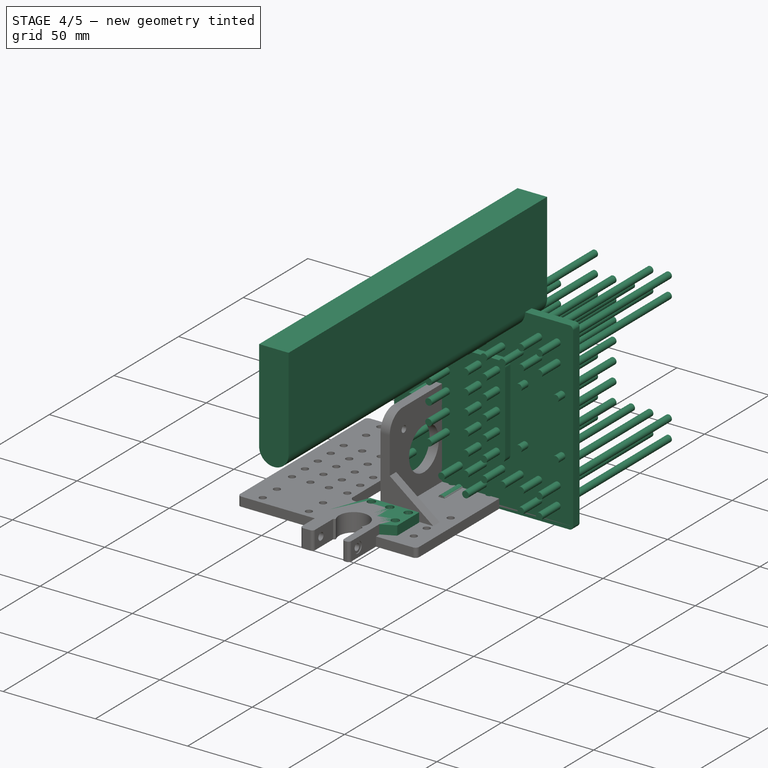
[diagram: stage 4 of 5 — iso view after this stage's code; geometry added in this stage tinted green]
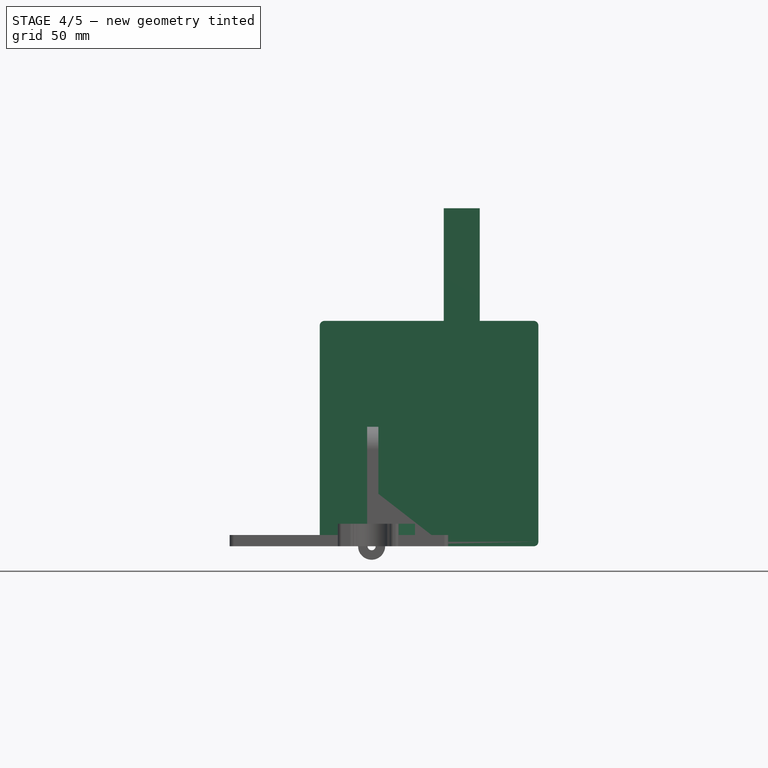
[diagram: stage 4 of 5 — front view after this stage's code; geometry added in this stage tinted green]
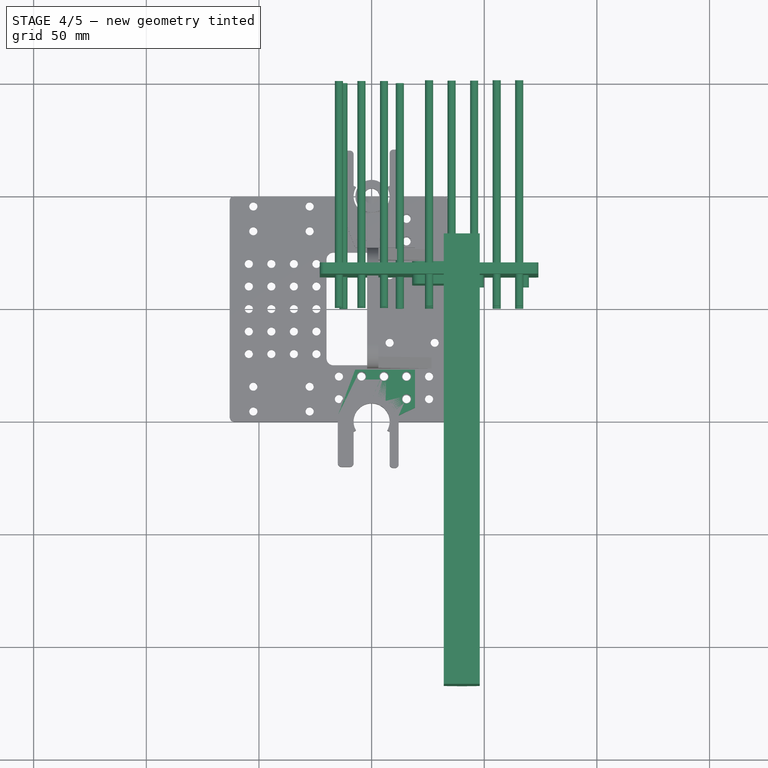
[diagram: stage 4 of 5 — top view after this stage's code; geometry added in this stage tinted green]
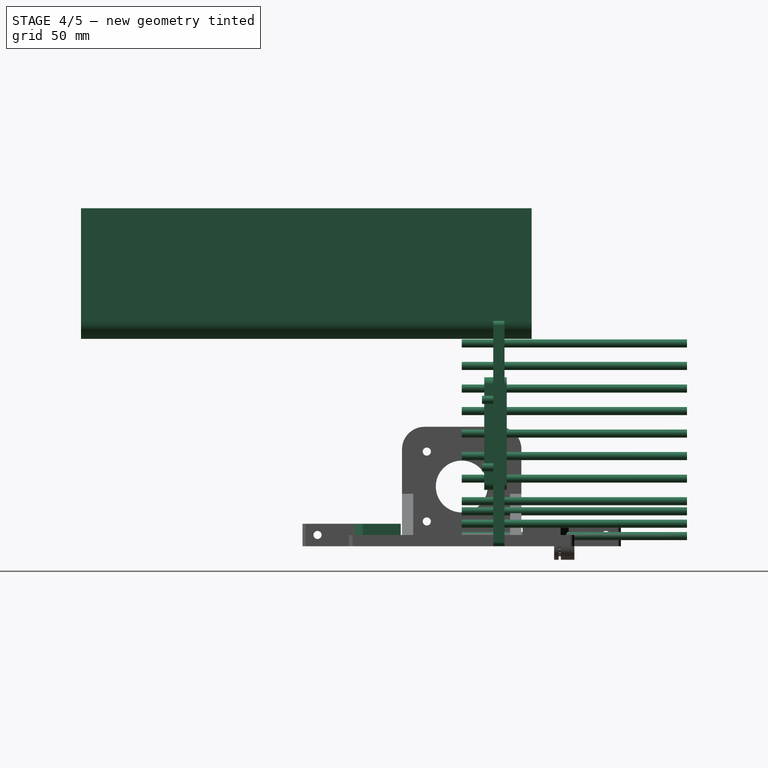
[diagram: stage 4 of 5 — right view after this stage's code; geometry added in this stage tinted green]
FEATURE [Part::Feature] Compound002  label="NEMA_17_with_connector_mockup"
  Placement = pos=(84,-6,50) rot=(0,-1,0;1.5708rad)
  shape: bbox 62 x 42.3 x 48.15 mm, 1151 faces, 10 solids (baked)
FEATURE [Spreadsheet::Sheet] Spreadsheet  label="p"
  cells = A1=stepper_shaft_space_size; B1(stepper_shaft_space_size)==25mm; A2=attachment_dist; B2(attachment_dist)==80mm; A3=attachment_size; B3(attachment_size)==20mm; A4=attachment_height; B4(attachment_height)==45mm; A5=bottom_axle_dist; B5(bottom_axle_dist)==47mm; A6=plate_height; B6(plate_height)==attachment_height + bottom_axle_dist + 5mm; A7=plate_length; B7(plate_length)==attachment_dist + attachment_size; A8=bolt_head_r; B8(bolt_head_r)==3mm; A9=bolt_hole_r; B9(bolt_hole_r)==1.8mm; A10=insert_hole_interval_x; B10(insert_hole_interval_x)==25mm; A11=insert_hole_interval_y; B11(insert_hole_interval_y)==11mm; A12=shaft_16mm_r; B12(shaft_16mm_r)==8mm; A13=insert_hole_r; B13(insert_hole_r)==2.1mm; A14=shaft_attachment_size; B14(shaft_attachment_size)==10mm; A15=plate_thickness; B15(plate_thickness)==5mm; A16=shaft_attachment_height; B16(shaft_attachment_height)==3mm
FEATURE [Part::Box] Box  label="side plate"
  AttacherType = Attacher::AttachEngine3D
  Height = 100
  Length = 97
  Placement = pos=(-23,-36,0) rot=(0,0,1;0rad)
  Width = 5
  expr: Length = <<p>>.plate_height
  expr: Height = <<p>>.plate_length
  expr: Width = <<p>>.plate_thickness
FEATURE [Part::Cylinder] Cylinder038  label="bolt hole"
  Angle = 360
  AttacherType = Attacher::AttachEngine3D
  Height = 100
  Placement = pos=(0,0,-50) rot=(0,0,1;0rad)
  Radius = 1.8
  expr: .Placement.Base.z = -Height / 2
  expr: Radius = <<p>>.bolt_hole_r
FEATURE [Part::FeaturePython] Array001  label="bolt hole array"  # Draft array (typed FeaturePython)
  Angle = 360
  ArrayType = 0
  Axis = (0,0,1)
  Base = -> Cylinder038
  Center = (0,0,0)
  Count = 4
  ExpandArray = false
  Fuse = false
  IntervalAxis = (0,0,0)
  IntervalX = (25,0,0)
  IntervalY = (0,11,0)
  IntervalZ = (0,0,100)
  NumberCircles = 3
  NumberPolar = 5
  NumberX = 2
  NumberY = 2
  NumberZ = 1
  Placement = pos=(-12.5,0,4.5) rot=(1,0,0;1.5708rad)
  PlacementList = 4 placements: [(0,0,-50),(0,11,-50),(25,0,-50),(25,11,-50)]
  RadialDistance = 50
  ScaleList = (4) [(1,1,1),(1,1,1),(1,1,1),(1,1,1)]
  Symmetry = 1
  TangentialDistance = 25
  expr: .Placement.Base.z = (<<p>>.attachment_size - .IntervalY.y) / 2
  expr: .IntervalX.x = <<p>>.insert_hole_interval_x
  expr: .IntervalY.y = <<p>>.insert_hole_interval_y
  expr: .Placement.Base.x = -.IntervalX.x / 2
FEATURE [Part::Cylinder] Cylinder  label="shaft 16mm"
  Angle = 360
  AttacherType = Attacher::AttachEngine3D
  Height = 200
  Placement = pos=(0,0,0) rot=(1,0,0;1.5708rad)
  Radius = 8
  expr: Radius = <<p>>.shaft_16mm_r
FEATURE [Part::Cylinder] Cylinder011002  label="general bolt hole"
  Angle = 360
  AttacherType = Attacher::AttachEngine3D
  Height = 100
  Placement = pos=(0,50,0) rot=(1,0,0;1.5708rad)
  Radius = 1.8
  expr: .Placement.Base.y = Height / 2
  expr: Radius = <<p>>.bolt_hole_r
FEATURE [Part::FeaturePython] Array004  label="general bolt hole array"  # Draft array (typed FeaturePython)
  Angle = 360
  ArrayType = 0
  Axis = (0,0,1)
  Base = -> Cylinder011002
  Center = (0,0,0)
  Count = 81
  ExpandArray = false
  Fuse = false
  IntervalAxis = (0,0,0)
  IntervalX = (10,0,0)
  IntervalY = (0,10,0)
  IntervalZ = (0,0,10)
  NumberCircles = 3
  NumberPolar = 5
  NumberX = 9
  NumberY = 1
  NumberZ = 9
  Placement = pos=(-14.5,0,10) rot=(0,0,1;0rad)
  PlacementList = 81 placements: [(0,50,0),(0,50,10),(0,50,20),(0,50,30),(0,50,40),(0,50,50),(0,50,60),(0,50,70),(0,50,80),(10,50,0),(10,50,10),(10,50,20),(10,50,30),(10,50,40),(10,50,50),(10,50,60),(10,50,70),(10,50,80),(20,50,0),(20,50,10),(20,50,20),(20,50,30),(20,50,40),(20,50,50),(20,50,60),(20,50,70),(20,50,80),(30,50,0),(30,50,10),(30,50,20),(30,50,30),(30,50,40),(30,50,50),(30,50,60),(30,50,70),(30,50,80),(40,50,0),+44 more]
  RadialDistance = 50
  ScaleList = (81) [(1,1,1),(1,1,1),(1,1,1),(1,1,1),(1,1,1),(1,1,1),(1,1,1),(1,1,1),(1,1,1),(1,1,1),(1,1,1),(1,1,1),(1,1,1),(1,1,1),(1,1,1),(1,1,1),(1,1,1),(1,1,1),+63 more]
  Symmetry = 1
  TangentialDistance = 25
  expr: .Placement.Base.x = (<<p>>.plate_height - .IntervalX.x * (NumberX - 1)) / 2 + <<side plate>>.Placement.Base.x
  expr: .Placement.Base.z = (<<p>>.plate_length - .IntervalZ.z * (NumberZ - 1)) / 2 + <<side plate>>.Placement.Base.z
  expr: NumberX = round(<<p>>.plate_height / .IntervalX.x) - 1
  expr: NumberZ = round(<<p>>.plate_length / .IntervalZ.z) - 1
FEATURE [Sketcher::SketchObject] Sketch
  FullyConstrained = false
  Placement = pos=(0,0,0) rot=(1,0,0;1.5708rad)
  sketch-geometry (24):
    g0: LineSegment StartX=-22.854 StartY=23.5436 StartZ=0 EndX=19.2636 EndY=23.5436 EndZ=0
    g1: LineSegment StartX=19.2636 StartY=23.5436 StartZ=0 EndX=19.2636 EndY=-0.19514 EndZ=0
    g2: LineSegment StartX=19.2636 StartY=-0.19514 StartZ=0 EndX=-22.854 EndY=-0.19514 EndZ=0
    g3: LineSegment StartX=-22.854 StartY=-0.19514 StartZ=0 EndX=-22.854 EndY=23.5436 EndZ=0
    g4: LineSegment StartX=-21.2207 StartY=102.675 StartZ=0 EndX=19.2504 EndY=102.675 EndZ=0
    g5: LineSegment StartX=19.2504 StartY=102.675 StartZ=0 EndX=19.2504 EndY=75.6273 EndZ=0
    g6: LineSegment StartX=19.2504 StartY=75.6273 StartZ=0 EndX=-21.2207 EndY=75.6273 EndZ=0
    g7: LineSegment StartX=-21.2207 StartY=75.6273 StartZ=0 EndX=-21.2207 EndY=102.675 EndZ=0
    g8: LineSegment StartX=42.3267 StartY=72.4011 StartZ=0 EndX=71.7078 EndY=72.4011 EndZ=0
    g9: LineSegment StartX=71.7078 StartY=72.4011 StartZ=0 EndX=71.7078 EndY=26.2045 EndZ=0
    g10: LineSegment StartX=71.7078 StartY=26.2045 StartZ=0 EndX=42.3267 EndY=26.2045 EndZ=0
    g11: LineSegment StartX=42.3267 StartY=26.2045 StartZ=0 EndX=42.3267 EndY=72.4011 EndZ=0
    g12: LineSegment StartX=31.4139 StartY=102.555 StartZ=0 EndX=51.6488 EndY=102.555 EndZ=0
    g13: LineSegment StartX=51.6488 StartY=102.555 StartZ=0 EndX=51.6488 EndY=84.5056 EndZ=0
    g14: LineSegment StartX=51.6488 StartY=84.5056 StartZ=0 EndX=31.4139 EndY=84.5056 EndZ=0
    g15: LineSegment StartX=31.4139 StartY=84.5056 StartZ=0 EndX=31.4139 EndY=102.555 EndZ=0
    g16: LineSegment StartX=28.5473 StartY=14.772 StartZ=0 EndX=50.5486 EndY=14.772 EndZ=0
    g17: LineSegment StartX=50.5486 StartY=14.772 StartZ=0 EndX=50.5486 EndY=-3.0068 EndZ=0
    g18: LineSegment StartX=50.5486 StartY=-3.0068 StartZ=0 EndX=28.5473 EndY=-3.0068 EndZ=0
    g19: LineSegment StartX=28.5473 StartY=-3.0068 StartZ=0 EndX=28.5473 EndY=14.772 EndZ=0
    g20: LineSegment StartX=11.1904 StartY=73.595 StartZ=0 EndX=20.302 EndY=73.595 EndZ=0
    g21: LineSegment StartX=20.302 StartY=73.595 StartZ=0 EndX=20.302 EndY=26.4812 EndZ=0
    g22: LineSegment StartX=20.302 StartY=26.4812 StartZ=0 EndX=11.1904 EndY=26.4812 EndZ=0
    g23: LineSegment StartX=11.1904 StartY=26.4812 StartZ=0 EndX=11.1904 EndY=73.595 EndZ=0
  constraints (48):
    c: Coincident(g0,g1)
    c: Coincident(g1,g2)
    c: Coincident(g2,g3)
    c: Coincident(g3,g0)
    c: Horizontal(g0)
    c: Horizontal(g2)
    c: Vertical(g1)
    c: Vertical(g3)
    c: Coincident(g4,g5)
    c: Coincident(g5,g6)
    c: Coincident(g6,g7)
    c: Coincident(g7,g4)
    c: Horizontal(g4)
    c: Horizontal(g6)
    c: Vertical(g5)
    c: Vertical(g7)
    c: Coincident(g8,g9)
    c: Coincident(g9,g10)
    c: Coincident(g10,g11)
    c: Coincident(g11,g8)
    c: Horizontal(g8)
    c: Horizontal(g10)
    c: Vertical(g9)
    c: Vertical(g11)
    c: Coincident(g12,g13)
    c: Coincident(g13,g14)
    c: Coincident(g14,g15)
    c: Coincident(g15,g12)
    c: Horizontal(g12)
    c: Horizontal(g14)
    c: Vertical(g13)
    c: Vertical(g15)
    c: Coincident(g16,g17)
    c: Coincident(g17,g18)
    c: Coincident(g18,g19)
    c: Coincident(g19,g16)
    c: Horizontal(g16)
    c: Horizontal(g18)
    c: Vertical(g17)
    c: Vertical(g19)
    c: Coincident(g20,g21)
    c: Coincident(g21,g22)
    c: Coincident(g22,g23)
    c: Coincident(g23,g20)
    c: Horizontal(g20)
    c: Horizontal(g22)
    c: Vertical(g21)
    c: Vertical(g23)
FEATURE [Part::Extrusion] Extrude  label="general holes extrude"
  Base = -> Sketch
  Dir = (0,-1,2e-16)
  DirMode = 2
  FaceMakerClass = Part::FaceMakerBullseye
  LengthFwd = 100
  LengthRev = 0
  Solid = true
  Symmetric = true
FEATURE [Part::Cut] Cut  label="general bolt hole set"
  Base = -> Array004
  Tool = -> Extrude
FEATURE [Part::Feature] Cut023015009006  label="stepper mount"
  Placement = pos=(38,-6,50) rot=(0,1,0;1.5708rad)
  shape: bbox 35 x 53 x 53 mm, 32 faces (baked)
  expr: .Placement.Base.z = <<p>>.attachment_dist / 2 + <<p>>.attachment_size / 2
FEATURE [Part::Cylinder] Cylinder011003  label="stepper mount hole"
  Angle = 360
  AttacherType = Attacher::AttachEngine3D
  Height = 10
  Radius = 1.8
  expr: Radius = <<p>>.bolt_hole_r
FEATURE [Part::FeaturePython] Array005  label="stepper mount hole array"  # Draft array (typed FeaturePython)
  Angle = 360
  ArrayType = 0
  Axis = (0,0,1)
  Base = -> Cylinder011003
  Center = (0,0,0)
  Count = 4
  ExpandArray = false
  Fuse = false
  IntervalAxis = (0,0,0)
  IntervalX = (30,0,0)
  IntervalY = (0,20,0)
  IntervalZ = (0,0,100)
  NumberCircles = 3
  NumberPolar = 5
  NumberX = 2
  NumberY = 2
  NumberZ = 1
  Placement = pos=(48,-31,65) rot=(0.57735,0.57735,-0.57735;2.0944rad)
  PlacementList = 4 placements: [(0,0,0),(0,20,0),(30,0,0),(30,20,0)]
  RadialDistance = 50
  ScaleList = (4) [(1,1,1),(1,1,1),(1,1,1),(1,1,1)]
  Symmetry = 1
  TangentialDistance = 25
FEATURE [Part::Fillet] Fillet  label="side plate fillet"
  Base = -> Box
  Edges = 4 edges r=2: [Edge2,Edge4,Edge6,Edge8]
FEATURE [Part::Box] Box002  label="belt hole"
  AttacherType = Attacher::AttachEngine3D
  Height = 50
  Length = 22
  Placement = pos=(18,-40,25) rot=(0,0,1;0rad)
  Width = 10
  expr: .Placement.Base.z = (<<p>>.plate_length - Height) / 2
FEATURE [Part::Fillet] Fillet002  label="belt hole fillet"
  Base = -> Box002
  Edges = 4 edges r=3: [Edge2,Edge4,Edge6,Edge8]
FEATURE [Part::Box] Box003  label="shaft extension cube"
  AttacherType = Attacher::AttachEngine3D
  Height = 50
  Length = 16
  Placement = pos=(-8,-200,-50) rot=(0,0,1;0rad)
  Width = 200
  expr: .Placement.Base.z = -Height
  expr: .Placement.Base.x = -Length / 2
  expr: Length = <<p>>.shaft_16mm_r * 2
  expr: .Placement.Base.y = -Width
  expr: Width = <<shaft 16mm>>.Height
FEATURE [Part::MultiFuse] Fusion002  label="shaft 16mm hole"
  Placement = pos=(40,-19,0) rot=(0,0,1;0rad)
  Shapes = -> [Cylinder,Box003]
FEATURE [Part::Mirroring] Part__Mirroring  label="shaft 16mm hole (Mirror #1)"
  Base = (0,0,50)
  Normal = (0,0,1)
  Source = -> Fusion002
FEATURE [PartDesign::Body] Body  label="shaft attachment body"
  Group = -> [Sketch002,Pad]
  Origin = -> Origin005
  Tip = -> Pad
FEATURE [Part::Cylinder] Cylinder011011  label="insert hole"
  Angle = 360
  AttacherType = Attacher::AttachEngine3D
  Height = 20
  Placement = pos=(-22,14,5) rot=(0,1,0;1.5708rad)
  Radius = 2
  expr: .Placement.Base.z = <<p>>.shaft_attachment_size / 2
FEATURE [Part::Cylinder] Cylinder011012  label="bolt hole001"
  Angle = 360
  AttacherType = Attacher::AttachEngine3D
  Height = 20
  Placement = pos=(-1,14,5) rot=(0,1,0;1.5708rad)
  Radius = 1.8
  expr: Radius = <<p>>.bolt_hole_r
  expr: .Placement.Base.z = <<p>>.shaft_attachment_size / 2
FEATURE [Part::Cylinder] Cylinder011013  label="bolt head hole"
  Angle = 360
  AttacherType = Attacher::AttachEngine3D
  Height = 20
  Placement = pos=(11.5,14,5) rot=(0,1,0;1.5708rad)
  Radius = 3
  expr: .Placement.Base.z = <<p>>.shaft_attachment_size / 2
  expr: Radius = <<p>>.bolt_head_r
FEATURE [Part::MultiFuse] Fusion004  label="shaft attachment hole fusion"
  Shapes = -> [Cylinder011011,Cylinder011012,Cylinder011013,Cut023015009020]
FEATURE [Part::Cut] Cut023015009009  label="shaft attachment  cut"
  Base = -> Fusion005
  Tool = -> Fusion004
FEATURE [Part::Mirroring] Part__Mirroring001  label="shaft attachment  cut (Mirror #2)"
  Base = (0,-50,0)
  Normal = (0,1,0)
  Source = -> Cut023015009009
FEATURE [Part::Compound] Compound004  label="shaft attachment pair compount"
  Links = -> [Cut023015009009,Part__Mirroring001]
FEATURE [App::Part] Part004  label="shaft attachment part"
  Group = -> [Compound004]
  Origin = -> Origin004
FEATURE [Part::Compound] Compound008  label="whole shaft plate compound"
  Links = -> [Compound004,Compound007]
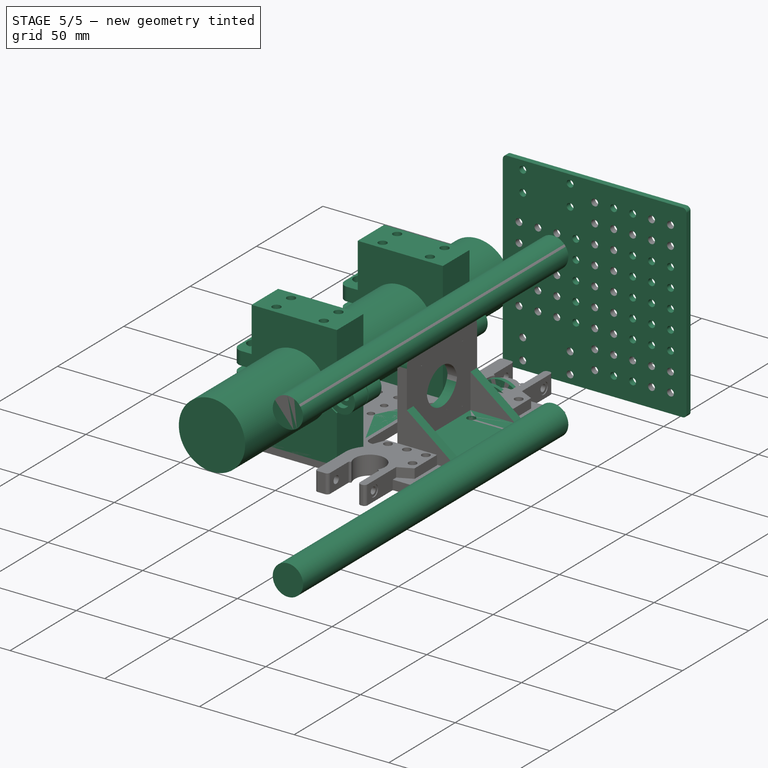
[diagram: stage 5 of 5 — iso view after this stage's code; geometry added in this stage tinted green]
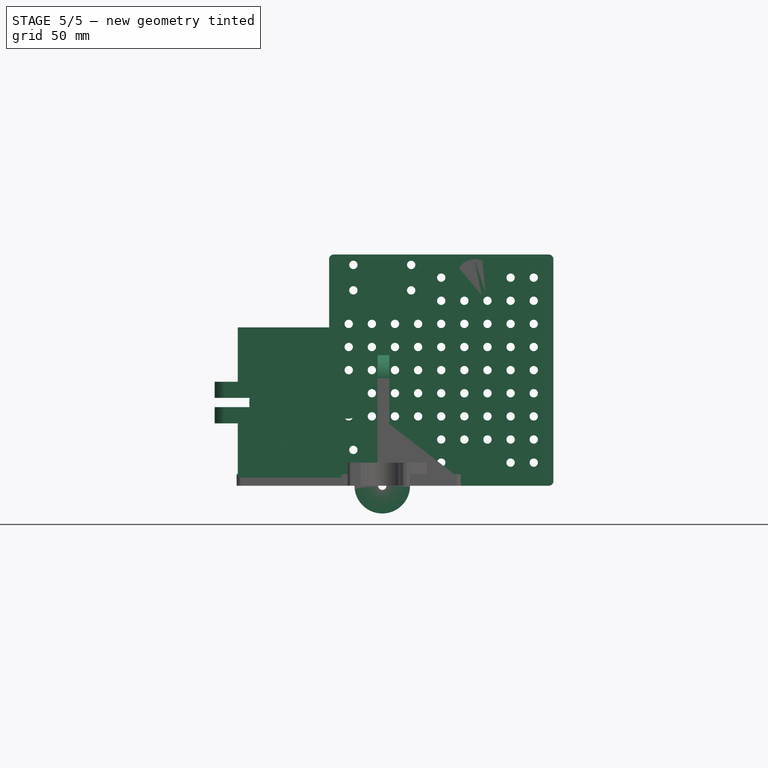
[diagram: stage 5 of 5 — front view after this stage's code; geometry added in this stage tinted green]
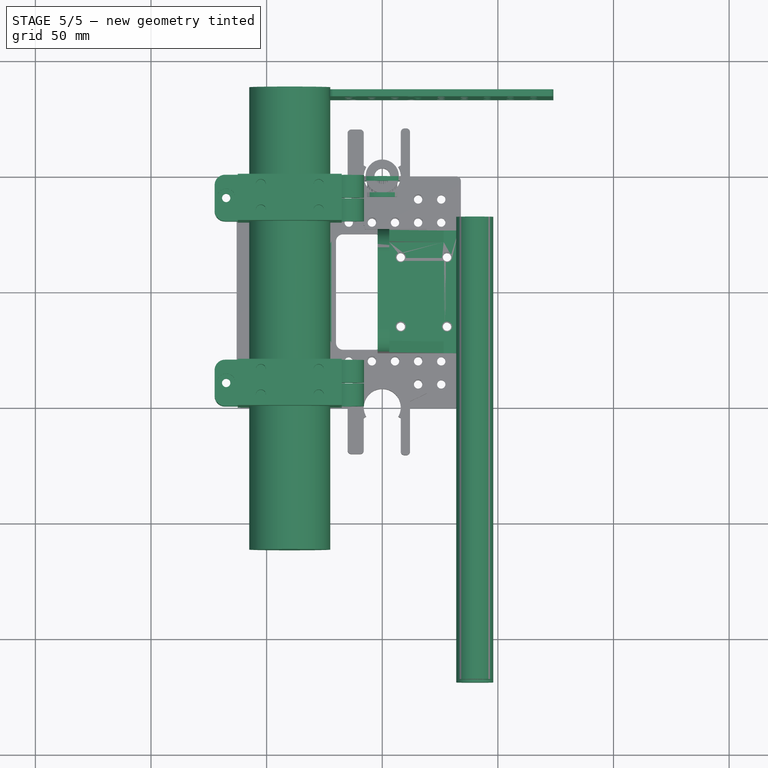
[diagram: stage 5 of 5 — top view after this stage's code; geometry added in this stage tinted green]
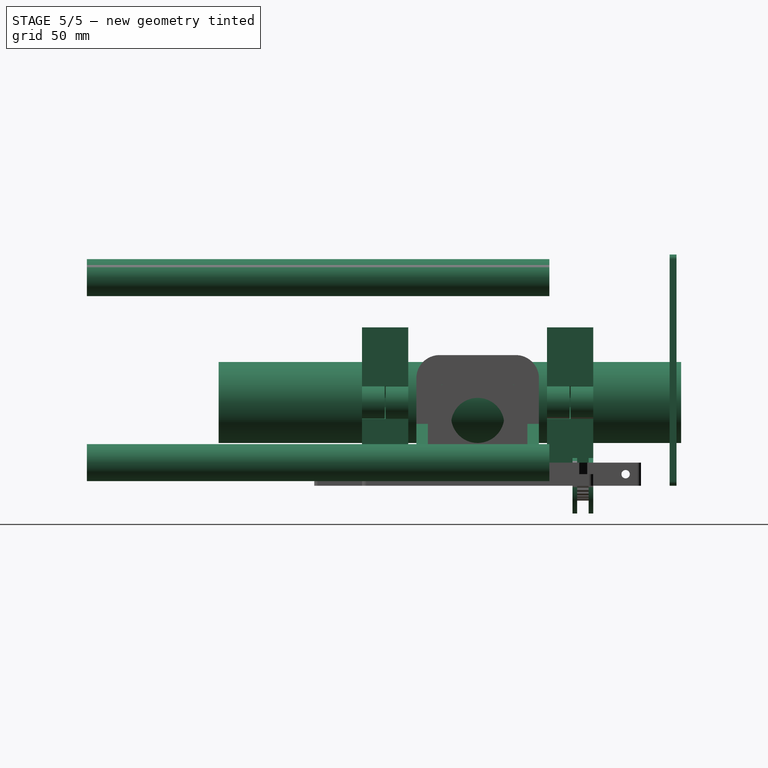
[diagram: stage 5 of 5 — right view after this stage's code; geometry added in this stage tinted green]
FEATURE [Part::Feature] Cut023015009001  label="35mm pipe attachment bolt cut002"
  shape: bbox 64.6 x 39.5 x 20 mm, 42 faces (baked)
FEATURE [Part::Feature] Cut023015006001  label="35mm pipe attachment insert cut002"
  shape: bbox 64.6 x 39.5 x 20 mm, 38 faces (baked)
FEATURE [Part::Compound] Compound  label="bring attachment compound"
  Links = -> [Cut023015009001,Cut023015006001]
FEATURE [Part::FeaturePython] Array  label="bring attachment array"  # Draft array (typed FeaturePython)
  Angle = 360
  ArrayType = 0
  Axis = (0,0,1)
  Base = -> Compound
  Center = (0,0,0)
  Count = 2
  ExpandArray = false
  Fuse = false
  IntervalAxis = (0,0,0)
  IntervalX = (100,0,0)
  IntervalY = (0,100,0)
  IntervalZ = (0,0,80)
  NumberCircles = 3
  NumberPolar = 5
  NumberX = 1
  NumberY = 1
  NumberZ = 2
  PlacementList = 2 placements: [(0,0,0),(0,0,80)]
  RadialDistance = 50
  ScaleList = (2) [(1,1,1),(1,1,1)]
  Symmetry = 1
  TangentialDistance = 25
  expr: .IntervalZ.z = <<p>>.attachment_dist
FEATURE [Part::Feature] Cylinder011001  label="35mm pipe mockup001"
  Placement = pos=(0,0,-38) rot=(0,0,1;0rad)
  shape: bbox 35 x 35 x 200 mm, 3 faces (baked)
FEATURE [Part::Compound] Compound001  label="attachment compound"
  Links = -> [Array,Cylinder011001]
FEATURE [Part::Box] Box001  label="pulley side plate"
  AttacherType = Attacher::AttachEngine3D
  Height = 100
  Length = 97
  Placement = pos=(-23,33,0) rot=(0,0,1;0rad)
  Width = 3
  expr: Height = <<p>>.plate_length
  expr: Length = <<p>>.plate_height
FEATURE [Part::FeaturePython] Array002  label="bolt hole array pair"  # Draft array (typed FeaturePython)
  Angle = 360
  ArrayType = 0
  Axis = (0,0,1)
  Base = -> Array001
  Center = (0,0,0)
  Count = 2
  ExpandArray = false
  Fuse = false
  IntervalAxis = (0,0,0)
  IntervalX = (100,0,0)
  IntervalY = (0,100,0)
  IntervalZ = (0,0,80)
  NumberCircles = 3
  NumberPolar = 5
  NumberX = 1
  NumberY = 1
  NumberZ = 2
  PlacementList = 2 placements: [(-12.5,0,4.5),(-12.5,0,84.5)]
  RadialDistance = 50
  ScaleList = (2) [(1,1,1),(1,1,1)]
  Symmetry = 1
  TangentialDistance = 25
  expr: .IntervalZ.z = <<p>>.attachment_dist
FEATURE [Sketcher::SketchObject] Sketch001
  FullyConstrained = false
  MapMode = 3
  Placement = pos=(-14.5,0,10) rot=(1,0,0;1.5708rad)
  Support = -> [Array004]
  sketch-geometry (8):
    g0: LineSegment StartX=35.2931 StartY=89.7365 StartZ=0 EndX=-7.95691 EndY=89.7365 EndZ=0
    g1: LineSegment StartX=-7.95691 StartY=89.7365 StartZ=0 EndX=-7.95691 EndY=64.3719 EndZ=0
    g2: LineSegment StartX=-7.95691 StartY=64.3719 StartZ=0 EndX=35.2931 EndY=64.3719 EndZ=0
    g3: LineSegment StartX=35.2931 StartY=64.3719 StartZ=0 EndX=35.2931 EndY=89.7365 EndZ=0
    g4: LineSegment StartX=-9.25768 StartY=13.6426 StartZ=0 EndX=35.6183 EndY=13.6426 EndZ=0
    g5: LineSegment StartX=35.6183 StartY=13.6426 StartZ=0 EndX=35.6183 EndY=-10.0961 EndZ=0
    g6: LineSegment StartX=35.6183 StartY=-10.0961 StartZ=0 EndX=-9.25768 EndY=-10.0961 EndZ=0
    g7: LineSegment StartX=-9.25768 StartY=-10.0961 StartZ=0 EndX=-9.25768 EndY=13.6426 EndZ=0
  constraints (16):
    c: Coincident(g0,g1)
    c: Coincident(g1,g2)
    c: Coincident(g2,g3)
    c: Coincident(g3,g0)
    c: Horizontal(g0)
    c: Horizontal(g2)
    c: Vertical(g1)
    c: Vertical(g3)
    c: Coincident(g4,g5)
    c: Coincident(g5,g6)
    c: Coincident(g6,g7)
    c: Coincident(g7,g4)
    c: Horizontal(g4)
    c: Horizontal(g6)
    c: Vertical(g5)
    c: Vertical(g7)
FEATURE [Part::Extrusion] Extrude001  label="pulley side extrude"
  Base = -> Sketch001
  Dir = (0,-1,2e-16)
  DirMode = 2
  FaceMakerClass = Part::FaceMakerBullseye
  LengthFwd = 100
  LengthRev = 0
  Solid = true
  Symmetric = true
FEATURE [Part::Cut] Cut023015009003  label="pulley general bolt hole set"
  Base = -> Array004
  Tool = -> Extrude001
FEATURE [Part::MultiFuse] Fusion001  label="pulley side hole fusion"
  Shapes = -> [Cut023015009003,Array002]
FEATURE [Part::Fillet] Fillet001  label="pulley side plate fillet"
  Base = -> Box001
  Edges = 4 edges r=2: [Edge2,Edge4,Edge6,Edge8]
FEATURE [Part::Cut] Cut023015009004  label="pulley side plate cut"
  Base = -> Fillet001
  Tool = -> Fusion001
FEATURE [Part::Cylinder] Cylinder011004  label="shaft 16mm001"
  Angle = 360
  AttacherType = Attacher::AttachEngine3D
  Height = 200
  Placement = pos=(0,0,0) rot=(1,0,0;1.5708rad)
  Radius = 8
  expr: Radius = <<p>>.shaft_16mm_r
FEATURE [Part::FeaturePython] Array006  label="shaft array"  # Draft array (typed FeaturePython)
  Angle = 360
  ArrayType = 0
  Axis = (0,0,1)
  Base = -> Cylinder011004
  Center = (0,0,0)
  Count = 2
  ExpandArray = false
  Fuse = false
  IntervalAxis = (0,0,0)
  IntervalX = (100,0,0)
  IntervalY = (0,100,0)
  IntervalZ = (0,0,80)
  NumberCircles = 3
  NumberPolar = 5
  NumberX = 1
  NumberY = 1
  NumberZ = 2
  Placement = pos=(40,-19,10) rot=(0,0,1;0rad)
  PlacementList = 2 placements: [(0,0,0),(0,0,80)]
  RadialDistance = 50
  ScaleList = (2) [(1,1,1),(1,1,1)]
  Symmetry = 1
  TangentialDistance = 25
  expr: .IntervalZ.z = <<p>>.attachment_dist
  expr: .Placement.Base.z = <<p>>.attachment_size / 2
FEATURE [Part::MultiFuse] Fusion  label="hole fusion"
  Shapes = -> [Cut,Array002,Array005,Fillet002,Part__Mirroring,Fusion002]
FEATURE [Part::Cut] Cut023015009002  label="side plate cut"
  Base = -> Fillet
  Tool = -> Fusion
FEATURE [App::Part] Part  label="shaft side plate part"
  Group = -> [Cut023015009002]
  Origin = -> Origin
FEATURE [App::Part] Part001  label="pulley side plate part"
  Group = -> [Cut023015009004]
  Origin = -> Origin001
FEATURE [Part::Cylinder] Cylinder011005  label="belt smaller cylinder"
  Angle = 360
  AttacherType = Attacher::AttachEngine3D
  Height = 7
  Placement = pos=(0,0,0) rot=(1,0,0;1.5708rad)
  Radius = 6
FEATURE [Part::Cylinder] Cylinder011006  label="belt disk"
  Angle = 360
  AttacherType = Attacher::AttachEngine3D
  Height = 2
  Placement = pos=(0,-7,0) rot=(1,0,0;1.5708rad)
  Radius = 12
  expr: .Placement.Base.y = -<<belt smaller cylinder>>.Height
FEATURE [Part::Cylinder] Cylinder011007  label="belt attach insert hole"
  Angle = 360
  AttacherType = Attacher::AttachEngine3D
  Height = 20
  Placement = pos=(0,0,0) rot=(1,0,0;1.5708rad)
  Radius = 2.1
  expr: Radius = Spreadsheet.insert_hole_r
FEATURE [Part::Cylinder] Cylinder011008  label="belt plate disk"
  Angle = 360
  AttacherType = Attacher::AttachEngine3D
  Height = 2
  Placement = pos=(0,0,0) rot=(1,0,0;1.5708rad)
  Radius = 12
FEATURE [Part::Cut] Cut023015009008  label="belt attach washer cut"
  Base = -> Cylinder011008
  Tool = -> Cylinder011007
FEATURE [App::Part] Part003  label="belt attach washer part"
  Group = -> [Cut023015009008]
  Origin = -> Origin003
  Placement = pos=(0,-2,0) rot=(0,0,1;0rad)
FEATURE [Part::Cylinder] Cylinder011009  label="belt pin"
  Angle = 360
  AttacherType = Attacher::AttachEngine3D
  Height = 7
  Placement = pos=(6,0,0) rot=(1,0,0;1.5708rad)
  Radius = 0.5
  expr: .Placement.Base.x = <<belt smaller cylinder>>.Radius
FEATURE [Part::FeaturePython] Array007  label="belt pin array"  # Draft array (typed FeaturePython)
  Angle = 360
  ArrayType = 1
  Axis = (0,1,0)
  Base = -> Cylinder011009
  Center = (0,0,0)
  Count = 22
  ExpandArray = false
  Fuse = false
  IntervalAxis = (0,0,0)
  IntervalX = (50,0,0)
  IntervalY = (0,50,0)
  IntervalZ = (0,0,50)
  NumberCircles = 3
  NumberPolar = 22
  NumberX = 2
  NumberY = 2
  NumberZ = 1
  PlacementList = 22 placements: [(6,0,0),(5.75696,0,-1.6904),(5.04752,0,-3.24384),(3.92916,0,-4.5345),(2.49249,0,-5.45779),(0.853889,0,-5.93893),(-0.853889,0,-5.93893),(-2.49249,0,-5.45779),(-3.92916,0,-4.5345),(-5.04752,0,-3.24384),(-5.75696,0,-1.6904),(-6,0,-7.34788e-16),(-5.75696,0,1.6904),(-5.04752,0,3.24384),(-3.92916,0,4.5345),(-2.49249,0,5.45779),(-0.853889,0,5.93893),(0.853889,0,5.93893),(2.49249,0,5.45779),+3 more]
  RadialDistance = 50
  ScaleList = (22) [(1,1,1),(1,1,1),(1,1,1),(1,1,1),(1,1,1),(1,1,1),(1,1,1),(1,1,1),(1,1,1),(1,1,1),(1,1,1),(1,1,1),(1,1,1),(1,1,1),(1,1,1),(1,1,1),(1,1,1),(1,1,1),+4 more]
  Symmetry = 1
  TangentialDistance = 25
FEATURE [Part::MultiFuse] Fusion003  label="belt attach fusion"
  Shapes = -> [Cylinder011005,Cylinder011006,Array007]
FEATURE [Part::Cut] Cut023015009007  label="belt attach cut"
  Base = -> Fusion003
  Tool = -> Cylinder011007
FEATURE [App::Part] Part002  label="belt attach"
  Group = -> [Cut023015009007]
  Origin = -> Origin002
FEATURE [Part::Compound] Compound003  label="shaft side compound with attachment"
  Links = -> [Cut023015009006,Compound001,Cut023015009002]
  Placement = pos=(-40,0,36) rot=(1,0,0;1.5708rad)
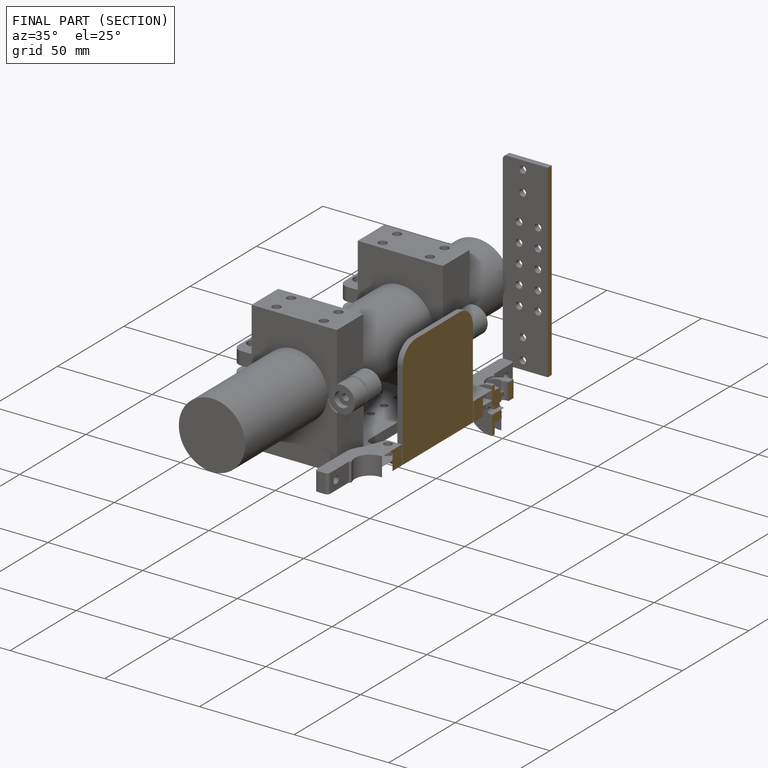
[diagram: finished part — half-section view (interior)]
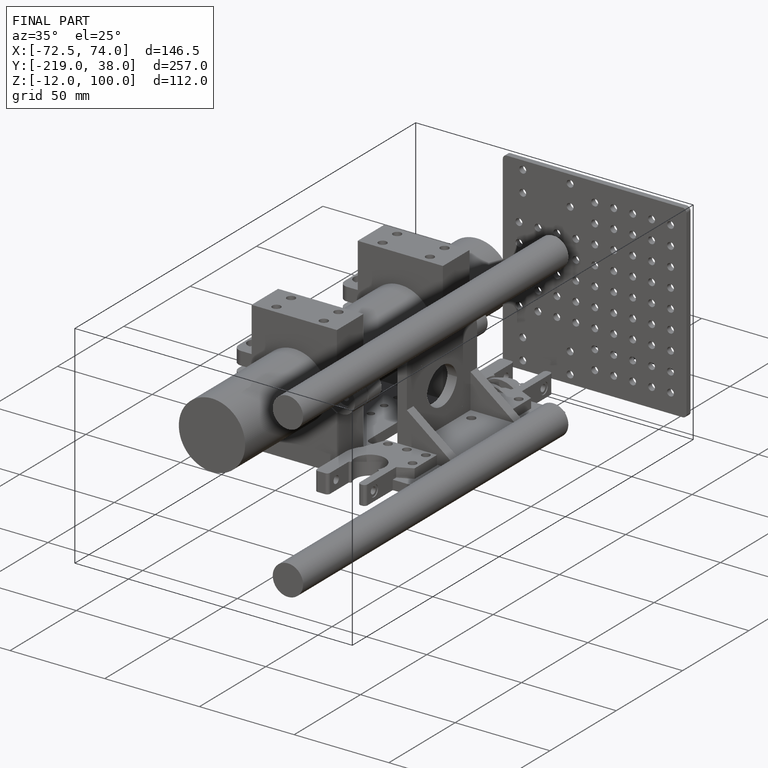
[diagram: finished part — iso view with bounding-box wireframe]
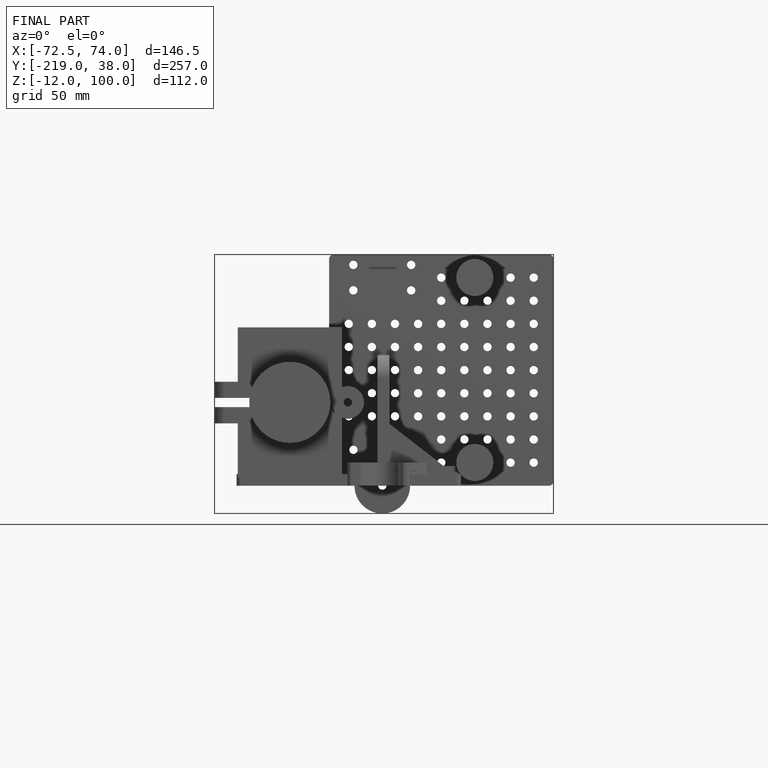
[diagram: finished part — front view with bounding-box wireframe]
